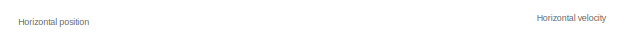
[diagram: root canvas - part 1/6, top left region]
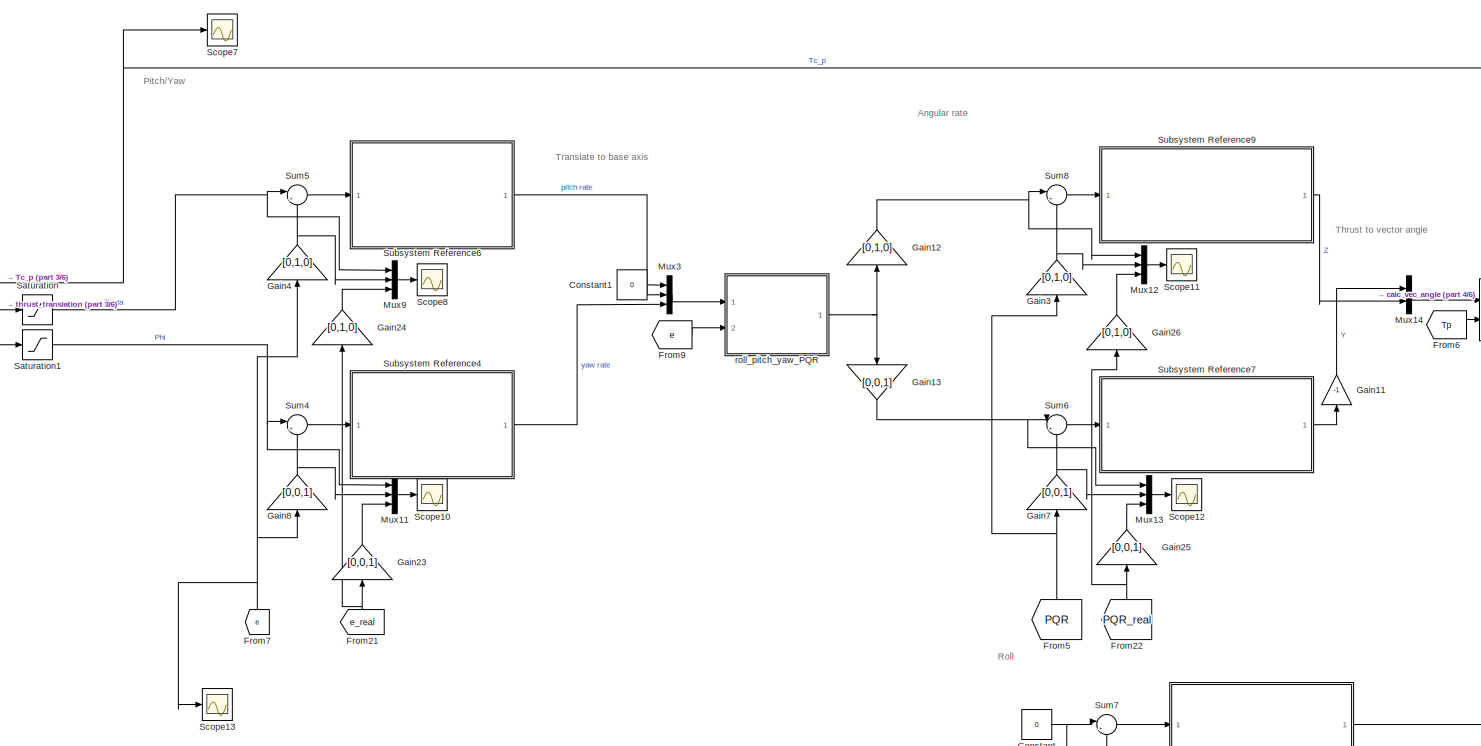
[diagram: root canvas - part 2/6, top center region]
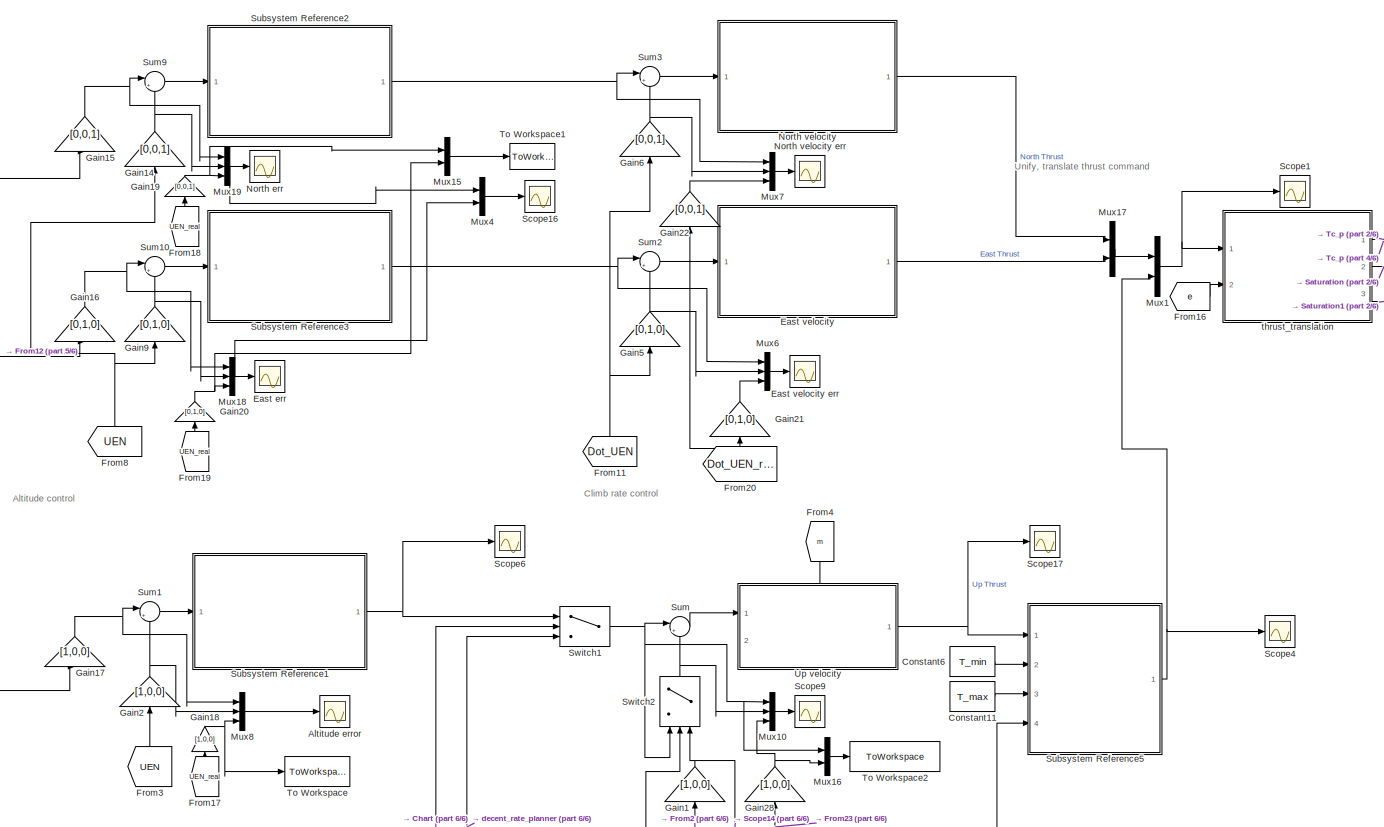
[diagram: root canvas - part 3/6, top left region]
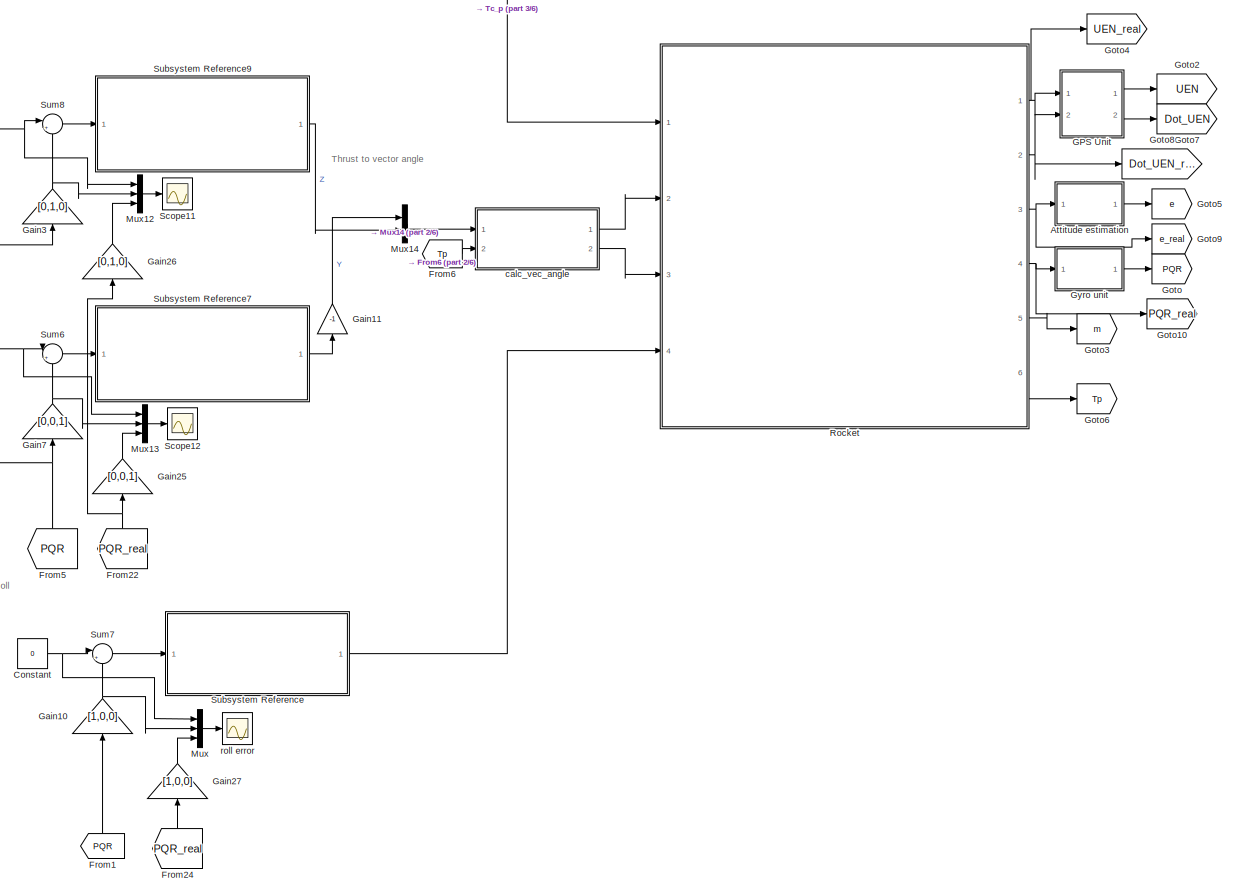
[diagram: root canvas - part 4/6, middle right region]
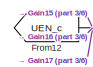
[diagram: root canvas - part 5/6, top left region]
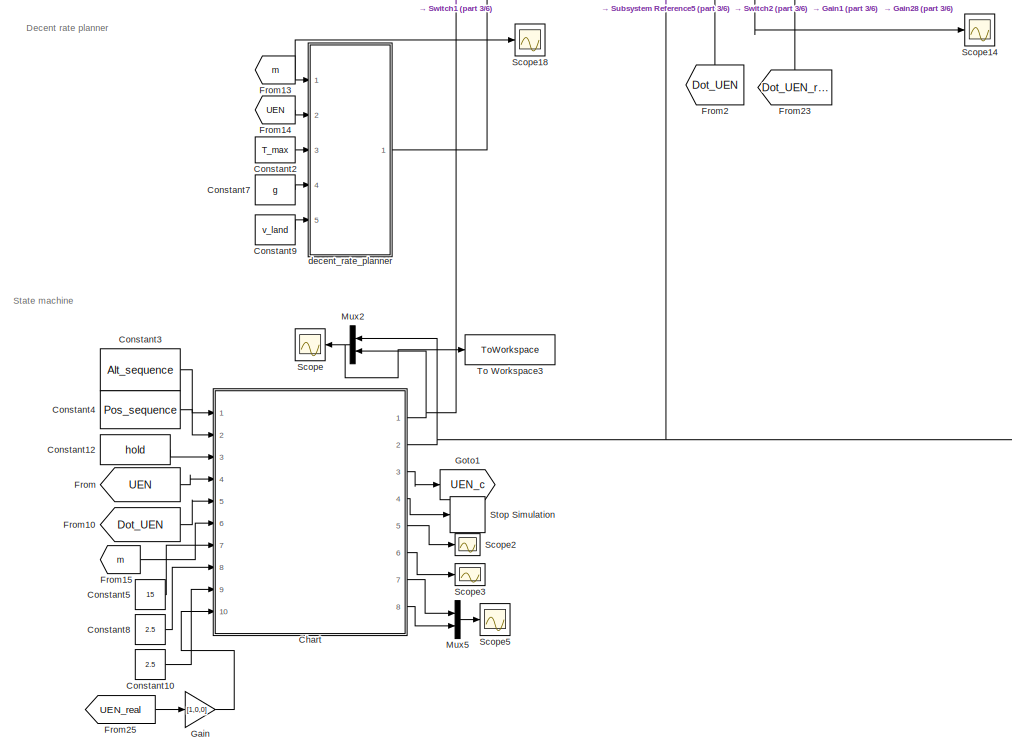
[diagram: root canvas - part 6/6, bottom left region]
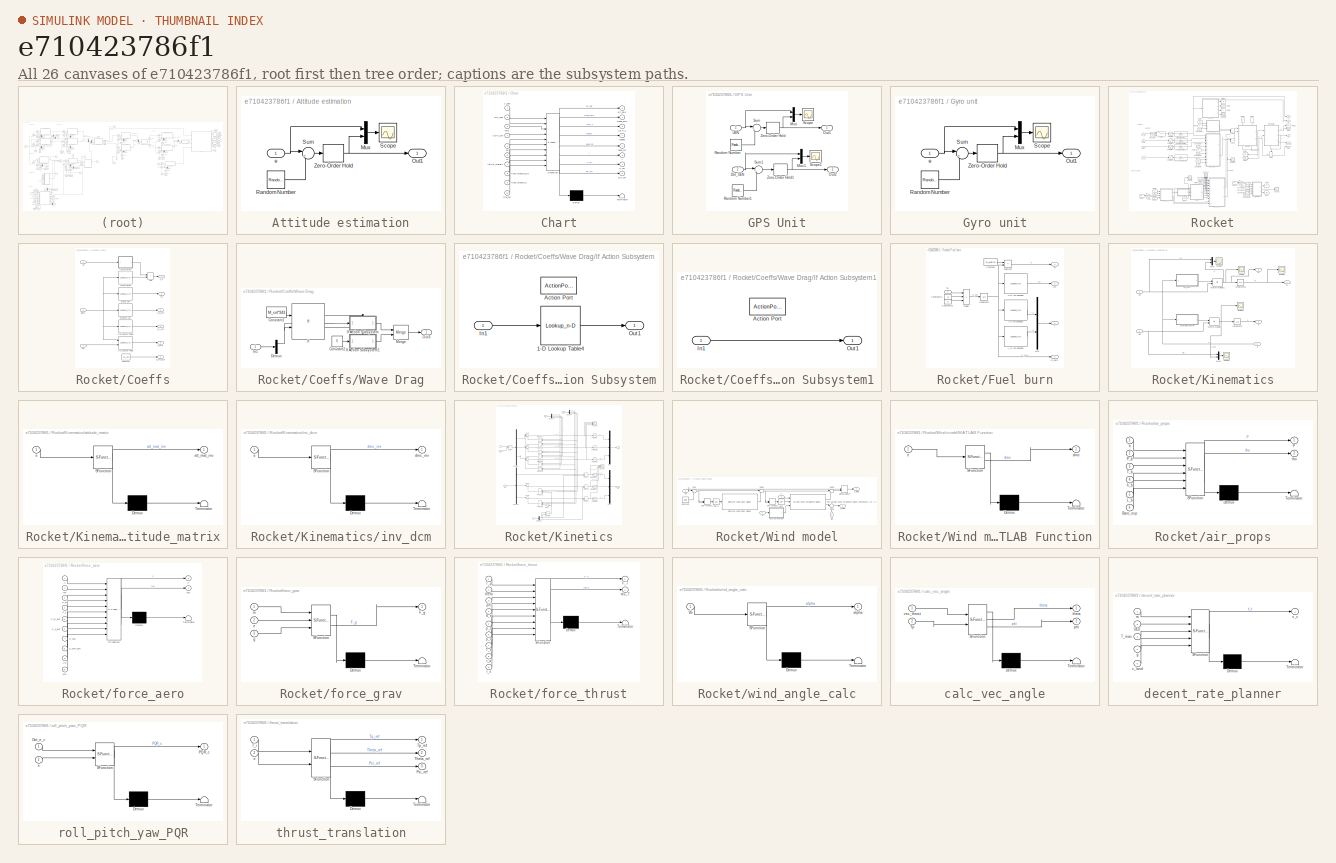
[diagram: thumbnail index - all 26 canvases of the model, root first then tree order]
MODEL slx_e710423786f1
KIND model
CONFIG AbsTol = auto
CONFIG EnableMultiTasking = off
CONFIG FixedStep = auto
CONFIG MaxStep = auto
CONFIG MinStep = auto
CONFIG RelTol = 1e-3
CONFIG SampleTimeConstraint = Unconstrained
CONFIG SolverName = VariableStepAuto
CONFIG StartTime = 0.0
CONFIG StopTime = 100
BLOCK [Scope] Altitude error
  Floating = off
  NumInputPorts = 1
  Ports = [1]
  ScopeSpecificationString = Simulink.scopes.TimeScopeBlockCfg('CurrentConfiguration', extmgr.ConfigurationSet(extmgr.Configuration('Core','General UI',true),extmgr.Configuration('Core','Source UI',true),extmgr.Configuration('Sources','WiredSimulink',true,'DataLoggingVariableName','ScopeData14'),extmgr.Configuration('Visuals','Time Domain',true,'SerializedDisplays',{struct('MinYLimReal','-0.03242','MaxYLimReal','0.27004','YLa...<+1550ch>
BLOCK [SubSystem] Attitude estimation
  Ports = [1, 1]
  RequestExecContextInheritance = off
BLOCK [Mux] Attitude estimation/Mux
  DisplayOption = bar
  Inputs = 2
  Ports = [2, 1]
BLOCK [Outport] Attitude estimation/Out1
BLOCK [RandomNumber] Attitude estimation/Random Number
  SampleTime = 0.001
  Variance = (ang_error/3)^2
BLOCK [Scope] Attitude estimation/Scope
  Floating = off
  NumInputPorts = 1
  Ports = [1]
  ScopeSpecificationString = Simulink.scopes.TimeScopeBlockCfg('CurrentConfiguration', extmgr.ConfigurationSet(extmgr.Configuration('Core','General UI',true),extmgr.Configuration('Core','Source UI',true),extmgr.Configuration('Sources','WiredSimulink',true,'DataLoggingVariableName','ScopeData6'),extmgr.Configuration('Visuals','Time Domain',true,'SerializedDisplays',{struct('MinYLimReal','-0.87459','MaxYLimReal','0.92504','YLab...<+1718ch>
BLOCK [Sum] Attitude estimation/Sum
  Inputs = |++
  Ports = [2, 1]
BLOCK [ZeroOrderHold] Attitude estimation/Zero-Order Hold
  SampleTime = 1/500
BLOCK [Inport] Attitude estimation/e
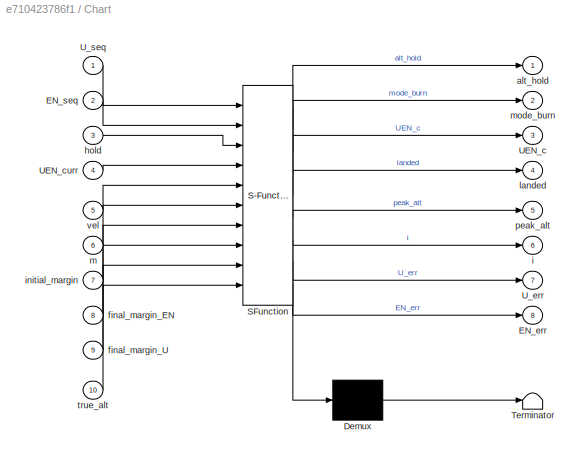
BLOCK [SubSystem] Chart
  ErrorFcn = Stateflow.Translate.translate
  PermitHierarchicalResolution = ExplicitOnly
  Ports = [10, 8]
  RequestExecContextInheritance = off
  SFBlockType = Chart
  TreatAsAtomicUnit = on
BLOCK [Demux] Chart/ Demux 
  Outputs = 1
  Ports = [1, 1]
BLOCK [S-Function] Chart/ SFunction 
  EnableBusSupport = on
  FunctionName = sf_sfun
  PortCounts = [10 9]
  Ports = [10, 9]
  SFcnIsStateOwnerBlock = off
  SFunctionDeploymentMode = off
  Tag = Stateflow S-Function 10
BLOCK [Terminator] Chart/ Terminator 
BLOCK [Outport] Chart/EN_err
  Port = 8
BLOCK [Inport] Chart/EN_seq
  Port = 2
BLOCK [Outport] Chart/UEN_c
  Port = 3
BLOCK [Inport] Chart/UEN_curr
  Port = 4
BLOCK [Outport] Chart/U_err
  Port = 7
BLOCK [Inport] Chart/U_seq
BLOCK [Outport] Chart/alt_hold
BLOCK [Inport] Chart/final_margin_EN
  Port = 8
BLOCK [Inport] Chart/final_margin_U
  Port = 9
BLOCK [Inport] Chart/hold
  Port = 3
BLOCK [Outport] Chart/i
  Port = 6
BLOCK [Inport] Chart/initial_margin
  Port = 7
BLOCK [Outport] Chart/landed
  Port = 4
BLOCK [Inport] Chart/m
  Port = 6
BLOCK [Outport] Chart/mode_burn
  Port = 2
BLOCK [Outport] Chart/peak_alt
  Port = 5
BLOCK [Inport] Chart/true_alt
  Port = 10
BLOCK [Inport] Chart/vel
  Port = 5
BLOCK [Constant] Constant
  Value = 0
BLOCK [Constant] Constant1
  Value = 0
BLOCK [Constant] Constant10
  Value = 2.5
BLOCK [Constant] Constant11
  Value = T_max
BLOCK [Constant] Constant12
  Value = hold
BLOCK [Constant] Constant2
  Value = T_max
BLOCK [Constant] Constant3
  Value = Alt_sequence
BLOCK [Constant] Constant4
  Value = Pos_sequence
BLOCK [Constant] Constant5
  Value = 15
BLOCK [Constant] Constant6
  Value = T_min
BLOCK [Constant] Constant7
  Value = g
BLOCK [Constant] Constant8
  Value = 2.5
BLOCK [Constant] Constant9
  Value = v_land
BLOCK [Scope] East err
  Floating = off
  NumInputPorts = 1
  Ports = [1]
  ScopeSpecificationString = Simulink.scopes.TimeScopeBlockCfg('CurrentConfiguration', extmgr.ConfigurationSet(extmgr.Configuration('Core','General UI',true),extmgr.Configuration('Core','Source UI',true),extmgr.Configuration('Sources','WiredSimulink',true,'DataLoggingVariableName','ScopeData3'),extmgr.Configuration('Visuals','Time Domain',true,'SerializedDisplays',{struct('MinYLimReal','-40.99916','MaxYLimReal','38.5905','YLa...<+1459ch>
BLOCK [SubSystem] East velocity
  Ports = [1, 1]
  ReferencedSubsystem = hor_vel_control
  RequestExecContextInheritance = off
BLOCK [Scope] East velocity err
  Floating = off
  NumInputPorts = 1
  Ports = [1]
  ScopeSpecificationString = Simulink.scopes.TimeScopeBlockCfg('CurrentConfiguration', extmgr.ConfigurationSet(extmgr.Configuration('Core','General UI',true),extmgr.Configuration('Core','Source UI',true),extmgr.Configuration('Sources','WiredSimulink',true,'DataLoggingVariableName','ScopeData9'),extmgr.Configuration('Visuals','Time Domain',true,'SerializedDisplays',{struct('MinYLimReal','-1.44687','MaxYLimReal','1.40033','YLab...<+1538ch>
BLOCK [From] From
  GotoTag = UEN
BLOCK [From] From1
  GotoTag = PQR
  NameLocation = right
BLOCK [From] From10
  GotoTag = Dot_UEN
BLOCK [From] From11
  GotoTag = Dot_UEN
  NameLocation = right
BLOCK [From] From12
  GotoTag = UEN_c
BLOCK [From] From13
  GotoTag = m
BLOCK [From] From14
  GotoTag = UEN
BLOCK [From] From15
  GotoTag = m
BLOCK [From] From16
  GotoTag = e
BLOCK [From] From17
  GotoTag = UEN_real
  NameLocation = right
BLOCK [From] From18
  GotoTag = UEN_real
  NameLocation = right
BLOCK [From] From19
  GotoTag = UEN_real
  NameLocation = right
BLOCK [From] From2
  GotoTag = Dot_UEN
  NameLocation = right
BLOCK [From] From20
  GotoTag = Dot_UEN_real
  NameLocation = right
BLOCK [From] From21
  GotoTag = e_real
  NameLocation = right
BLOCK [From] From22
  GotoTag = PQR_real
  NameLocation = right
BLOCK [From] From23
  GotoTag = Dot_UEN_real
  NameLocation = right
BLOCK [From] From24
  GotoTag = PQR_real
  NameLocation = right
BLOCK [From] From25
  GotoTag = UEN_real
BLOCK [From] From3
  GotoTag = UEN
  NameLocation = right
BLOCK [From] From4
  GotoTag = m
  NameLocation = left
BLOCK [From] From5
  GotoTag = PQR
  NameLocation = right
BLOCK [From] From6
  GotoTag = Tp
BLOCK [From] From7
  GotoTag = e
  NameLocation = right
BLOCK [From] From8
  GotoTag = UEN
  NameLocation = right
BLOCK [From] From9
  GotoTag = e
BLOCK [SubSystem] GPS Unit
  Ports = [2, 2]
  RequestExecContextInheritance = off
BLOCK [Inport] GPS Unit/Dot_UEN
  Port = 2
BLOCK [Mux] GPS Unit/Mux
  DisplayOption = bar
  Inputs = 2
  Ports = [2, 1]
BLOCK [Mux] GPS Unit/Mux1
  DisplayOption = bar
  Inputs = 2
  Ports = [2, 1]
BLOCK [Outport] GPS Unit/Out1
BLOCK [Outport] GPS Unit/Out2
  Port = 2
BLOCK [RandomNumber] GPS Unit/Random Number
  SampleTime = 1/100
  Variance = (pos_error/3)^2
BLOCK [RandomNumber] GPS Unit/Random Number1
  SampleTime = 1/100
  Variance = (vel_error/3)^2
BLOCK [Scope] GPS Unit/Scope
  Floating = off
  NumInputPorts = 1
  Ports = [1]
  ScopeSpecificationString = Simulink.scopes.TimeScopeBlockCfg('CurrentConfiguration', extmgr.ConfigurationSet(extmgr.Configuration('Core','General UI',true),extmgr.Configuration('Core','Source UI',true),extmgr.Configuration('Sources','WiredSimulink',true,'DataLoggingVariableName','ScopeData6'),extmgr.Configuration('Visuals','Time Domain',true,'SerializedDisplays',{struct('MinYLimReal','27.51355','MaxYLimReal','33.99188','YLa...<+1730ch>
BLOCK [Scope] GPS Unit/Scope1
  Floating = off
  NumInputPorts = 1
  Ports = [1]
  ScopeSpecificationString = Simulink.scopes.TimeScopeBlockCfg('CurrentConfiguration', extmgr.ConfigurationSet(extmgr.Configuration('Core','General UI',true),extmgr.Configuration('Core','Source UI',true),extmgr.Configuration('Sources','WiredSimulink',true,'DataLoggingVariableName','ScopeData7'),extmgr.Configuration('Visuals','Time Domain',true,'SerializedDisplays',{struct('MinYLimReal','-19.50054','MaxYLimReal','13.89662','YL...<+1536ch>
BLOCK [Sum] GPS Unit/Sum
  Inputs = |++
  Ports = [2, 1]
BLOCK [Sum] GPS Unit/Sum1
  Inputs = |++
  Ports = [2, 1]
BLOCK [Inport] GPS Unit/UEN
BLOCK [ZeroOrderHold] GPS Unit/Zero-Order Hold
  SampleTime = 1/18
BLOCK [ZeroOrderHold] GPS Unit/Zero-Order Hold1
  SampleTime = 1/18
BLOCK [Gain] Gain
  Gain = [1,0,0]
  Multiplication = Matrix(K*u)
BLOCK [Gain] Gain1
  Gain = [1,0,0]
  Multiplication = Matrix(K*u)
  NameLocation = right
BLOCK [Gain] Gain10
  Gain = [1,0,0]
  Multiplication = Matrix(K*u)
  NameLocation = right
BLOCK [Gain] Gain11
  Gain = -1
  NameLocation = right
BLOCK [Gain] Gain12
  Gain = [0,1,0]
  Multiplication = Matrix(K*u)
  NameLocation = right
BLOCK [Gain] Gain13
  Gain = [0,0,1]
  Multiplication = Matrix(K*u)
  NameLocation = left
BLOCK [Gain] Gain14
  Gain = [0,0,1]
  Multiplication = Matrix(K*u)
  NameLocation = right
BLOCK [Gain] Gain15
  Gain = [0,0,1]
  Multiplication = Matrix(K*u)
  NameLocation = right
BLOCK [Gain] Gain16
  Gain = [0,1,0]
  Multiplication = Matrix(K*u)
  NameLocation = right
BLOCK [Gain] Gain17
  Gain = [1,0,0]
  Multiplication = Matrix(K*u)
  NameLocation = right
BLOCK [Gain] Gain18
  Gain = [1,0,0]
  Multiplication = Matrix(K*u)
  NameLocation = right
BLOCK [Gain] Gain19
  Gain = [0,0,1]
  Multiplication = Matrix(K*u)
  NameLocation = right
BLOCK [Gain] Gain2
  Gain = [1,0,0]
  Multiplication = Matrix(K*u)
  NameLocation = right
BLOCK [Gain] Gain20
  Gain = [0,1,0]
  Multiplication = Matrix(K*u)
  NameLocation = right
BLOCK [Gain] Gain21
  Gain = [0,1,0]
  Multiplication = Matrix(K*u)
  NameLocation = right
BLOCK [Gain] Gain22
  Gain = [0,0,1]
  Multiplication = Matrix(K*u)
  NameLocation = right
BLOCK [Gain] Gain23
  Gain = [0,0,1]
  Multiplication = Matrix(K*u)
  NameLocation = right
BLOCK [Gain] Gain24
  Gain = [0,1,0]
  Multiplication = Matrix(K*u)
  NameLocation = right
BLOCK [Gain] Gain25
  Gain = [0,0,1]
  Multiplication = Matrix(K*u)
  NameLocation = right
BLOCK [Gain] Gain26
  Gain = [0,1,0]
  Multiplication = Matrix(K*u)
  NameLocation = right
BLOCK [Gain] Gain27
  Gain = [1,0,0]
  Multiplication = Matrix(K*u)
  NameLocation = right
BLOCK [Gain] Gain28
  Gain = [1,0,0]
  Multiplication = Matrix(K*u)
  NameLocation = right
BLOCK [Gain] Gain3
  Gain = [0,1,0]
  Multiplication = Matrix(K*u)
  NameLocation = right
BLOCK [Gain] Gain4
  Gain = [0,1,0]
  Multiplication = Matrix(K*u)
  NameLocation = right
BLOCK [Gain] Gain5
  Gain = [0,1,0]
  Multiplication = Matrix(K*u)
  NameLocation = right
BLOCK [Gain] Gain6
  Gain = [0,0,1]
  Multiplication = Matrix(K*u)
  NameLocation = right
BLOCK [Gain] Gain7
  Gain = [0,0,1]
  Multiplication = Matrix(K*u)
  NameLocation = right
BLOCK [Gain] Gain8
  Gain = [0,0,1]
  Multiplication = Matrix(K*u)
  NameLocation = right
BLOCK [Gain] Gain9
  Gain = [0,1,0]
  Multiplication = Matrix(K*u)
  NameLocation = right
BLOCK [Goto] Goto
  GotoTag = PQR
BLOCK [Goto] Goto1
  GotoTag = UEN_c
BLOCK [Goto] Goto10
  GotoTag = PQR_real
BLOCK [Goto] Goto2
  GotoTag = UEN
BLOCK [Goto] Goto3
  GotoTag = m
BLOCK [Goto] Goto4
  GotoTag = UEN_real
BLOCK [Goto] Goto5
  GotoTag = e
BLOCK [Goto] Goto6
  GotoTag = Tp
BLOCK [Goto] Goto7
  GotoTag = Dot_UEN
BLOCK [Goto] Goto8
  GotoTag = Dot_UEN_real
BLOCK [Goto] Goto9
  GotoTag = e_real
BLOCK [SubSystem] Gyro unit
  Ports = [1, 1]
  RequestExecContextInheritance = off
BLOCK [Mux] Gyro unit/Mux
  DisplayOption = bar
  Inputs = 2
  Ports = [2, 1]
BLOCK [Outport] Gyro unit/Out1
BLOCK [RandomNumber] Gyro unit/Random Number
  SampleTime = 0.001
  Variance = (rate_error/3)^2
BLOCK [Scope] Gyro unit/Scope
  Floating = off
  NumInputPorts = 1
  Ports = [1]
  ScopeSpecificationString = Simulink.scopes.TimeScopeBlockCfg('CurrentConfiguration', extmgr.ConfigurationSet(extmgr.Configuration('Core','General UI',true),extmgr.Configuration('Core','Source UI',true),extmgr.Configuration('Sources','WiredSimulink',true,'DataLoggingVariableName','ScopeData6'),extmgr.Configuration('Visuals','Time Domain',true,'SerializedDisplays',{struct('MinYLimReal','-0.87459','MaxYLimReal','0.92504','YLab...<+1718ch>
BLOCK [Sum] Gyro unit/Sum
  Inputs = |++
  Ports = [2, 1]
BLOCK [ZeroOrderHold] Gyro unit/Zero-Order Hold
  SampleTime = 1/500
BLOCK [Inport] Gyro unit/e
BLOCK [Mux] Mux
  DisplayOption = bar
  Inputs = 3
  Ports = [3, 1]
BLOCK [Mux] Mux1
  DisplayOption = bar
  Inputs = 2
  Ports = [2, 1]
BLOCK [Mux] Mux10
  DisplayOption = bar
  Inputs = 3
  Ports = [3, 1]
BLOCK [Mux] Mux11
  DisplayOption = bar
  Inputs = 3
  Ports = [3, 1]
BLOCK [Mux] Mux12
  DisplayOption = bar
  Inputs = 3
  Ports = [3, 1]
BLOCK [Mux] Mux13
  DisplayOption = bar
  Inputs = 3
  Ports = [3, 1]
BLOCK [Mux] Mux14
  DisplayOption = bar
  Inputs = 2
  Ports = [2, 1]
BLOCK [Mux] Mux15
  DisplayOption = bar
  Inputs = 2
  Ports = [2, 1]
BLOCK [Mux] Mux16
  DisplayOption = bar
  Inputs = 2
  Ports = [2, 1]
BLOCK [Mux] Mux17
  DisplayOption = bar
  Inputs = 2
  Ports = [2, 1]
BLOCK [Mux] Mux18
  DisplayOption = bar
  Inputs = 3
  Ports = [3, 1]
BLOCK [Mux] Mux19
  DisplayOption = bar
  Inputs = 3
  Ports = [3, 1]
BLOCK [Mux] Mux2
  DisplayOption = bar
  Inputs = 2
  NameLocation = top
  Ports = [2, 1]
BLOCK [Mux] Mux3
  DisplayOption = bar
  Inputs = 3
  Ports = [3, 1]
BLOCK [Mux] Mux4
  DisplayOption = bar
  Inputs = 2
  Ports = [2, 1]
BLOCK [Mux] Mux5
  DisplayOption = bar
  Inputs = 2
  Ports = [2, 1]
BLOCK [Mux] Mux6
  DisplayOption = bar
  Inputs = 3
  Ports = [3, 1]
BLOCK [Mux] Mux7
  DisplayOption = bar
  Inputs = 3
  Ports = [3, 1]
BLOCK [Mux] Mux8
  DisplayOption = bar
  Inputs = 3
  Ports = [3, 1]
BLOCK [Mux] Mux9
  DisplayOption = bar
  Inputs = 3
  Ports = [3, 1]
BLOCK [Scope] North err
  Floating = off
  NumInputPorts = 1
  Ports = [1]
  ScopeSpecificationString = Simulink.scopes.TimeScopeBlockCfg('CurrentConfiguration', extmgr.ConfigurationSet(extmgr.Configuration('Core','General UI',true),extmgr.Configuration('Core','Source UI',true),extmgr.Configuration('Sources','WiredSimulink',true,'DataLoggingVariableName','ScopeData4'),extmgr.Configuration('Visuals','Time Domain',true,'SerializedDisplays',{struct('MinYLimReal','-39.82766','MaxYLimReal','38.24334','YL...<+1463ch>
BLOCK [SubSystem] North velocity
  Ports = [1, 1]
  ReferencedSubsystem = hor_vel_control
  RequestExecContextInheritance = off
BLOCK [Scope] North velocity err
  Floating = off
  NumInputPorts = 1
  Ports = [1]
  ScopeSpecificationString = Simulink.scopes.TimeScopeBlockCfg('CurrentConfiguration', extmgr.ConfigurationSet(extmgr.Configuration('Core','General UI',true),extmgr.Configuration('Core','Source UI',true),extmgr.Configuration('Sources','WiredSimulink',true,'DataLoggingVariableName','ScopeData10'),extmgr.Configuration('Visuals','Time Domain',true,'SerializedDisplays',{struct('MinYLimReal','-1.45922','MaxYLimReal','1.40056','YLa...<+1539ch>
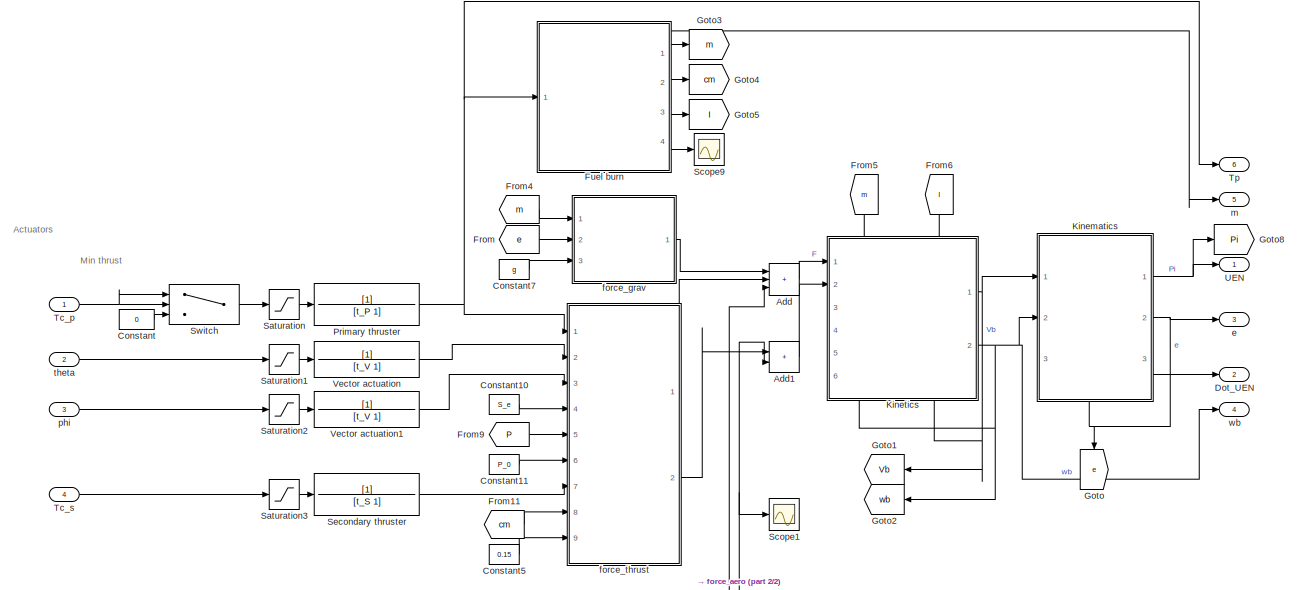
[diagram: Rocket - part 1/2, full width, middle band]
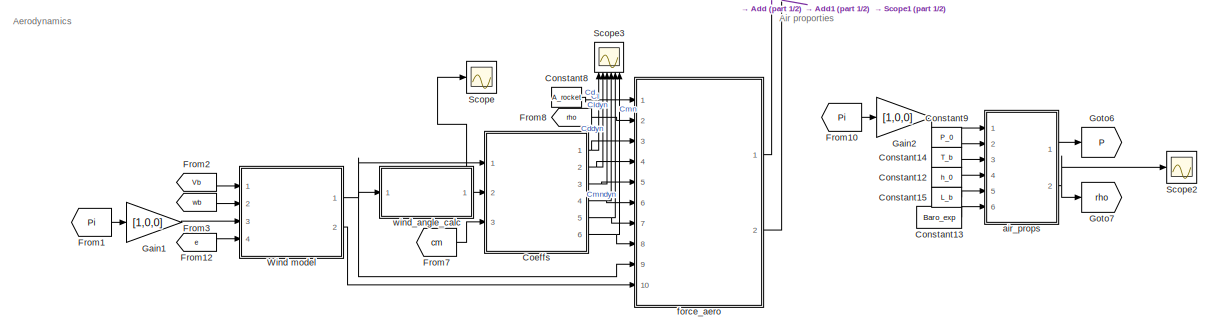
[diagram: Rocket - part 2/2, full width, bottom band]
BLOCK [SubSystem] Rocket
  Ports = [4, 6]
  RequestExecContextInheritance = off
BLOCK [Sum] Rocket/Add
  IconShape = rectangular
  Inputs = +++
  Ports = [3, 1]
BLOCK [Sum] Rocket/Add1
  IconShape = rectangular
  Ports = [2, 1]
BLOCK [SubSystem] Rocket/Coeffs
  Ports = [3, 6]
  RequestExecContextInheritance = off
BLOCK [Lookup_n-D] Rocket/Coeffs/1-D Lookup Table2
  BreakpointsForDimension1 = alpha_fine
  InputPortMap = u0
  InternalRulePriority = Speed
  NumberOfTableDimensions = 1
  Ports = [1, 1]
  RndMeth = Simplest
  Table = lift_rot_lookup
BLOCK [Lookup_n-D] Rocket/Coeffs/2-D Lookup Table
  BreakpointsForDimension1 = alpha_fine
  BreakpointsForDimension2 = cm_fine
  InputPortMap = u0,u1
  InternalRulePriority = Speed
  Ports = [2, 1]
  RndMeth = Simplest
  Table = T_lookup
BLOCK [Sum] Rocket/Coeffs/Add
  IconShape = rectangular
  Ports = [2, 1]
BLOCK [Outport] Rocket/Coeffs/C_D
BLOCK [Outport] Rocket/Coeffs/C_D_dyn
  Port = 3
BLOCK [Outport] Rocket/Coeffs/C_L
  Port = 2
BLOCK [Outport] Rocket/Coeffs/C_L_dyn
  Port = 4
BLOCK [Outport] Rocket/Coeffs/C_MN
  Port = 5
BLOCK [Outport] Rocket/Coeffs/C_MN_dyn
  Port = 6
BLOCK [Constant] Rocket/Coeffs/Constant
  Value = Ct_rot
BLOCK [Lookup_n-D] Rocket/Coeffs/Dynamic Lift
  BreakpointsForDimension1 = alpha_fine
  InputPortMap = u0
  InternalRulePriority = Speed
  NumberOfTableDimensions = 1
  Ports = [1, 1]
  RndMeth = Simplest
  Table = drag_rot_lookup
BLOCK [Lookup_n-D] Rocket/Coeffs/Static Drag
  BreakpointsForDimension1 = alpha_fine
  InputPortMap = u0
  InternalRulePriority = Speed
  NumberOfTableDimensions = 1
  Ports = [1, 1]
  RndMeth = Simplest
  Table = drag_lookup
BLOCK [Lookup_n-D] Rocket/Coeffs/Static Lift
  BreakpointsForDimension1 = alpha_fine
  InputPortMap = u0
  InternalRulePriority = Speed
  NumberOfTableDimensions = 1
  Ports = [1, 1]
  RndMeth = Simplest
  Table = lift_lookup
BLOCK [Inport] Rocket/Coeffs/Vb
BLOCK [SubSystem] Rocket/Coeffs/Wave Drag
  Ports = [1, 1]
  RequestExecContextInheritance = off
BLOCK [Constant] Rocket/Coeffs/Wave Drag/Constant1
  Value = M_crit*343
BLOCK [Constant] Rocket/Coeffs/Wave Drag/Constant2
  Value = 0
BLOCK [Demux] Rocket/Coeffs/Wave Drag/Demux
  Outputs = 3
  Ports = [1, 3]
BLOCK [If] Rocket/Coeffs/Wave Drag/If
  IfExpression = u1 < u2
  NumInputs = 2
  Ports = [2, 2]
BLOCK [SubSystem] Rocket/Coeffs/Wave Drag/If Action Subsystem
  Ports = [1, 1, 0, 0, 0, 0, 0, 1]
  RequestExecContextInheritance = off
  TreatAsAtomicUnit = on
BLOCK [Lookup_n-D] Rocket/Coeffs/Wave Drag/If Action Subsystem/1-D Lookup Table4
  BreakpointsForDimension1 = M_fine*343
  InputPortMap = u0
  InternalRulePriority = Speed
  NumberOfTableDimensions = 1
  Ports = [1, 1]
  RndMeth = Simplest
  Table = drag_wave_lookup
BLOCK [ActionPort] Rocket/Coeffs/Wave Drag/If Action Subsystem/Action Port
  ActionPortLabel = if(u1 < u2)
BLOCK [Inport] Rocket/Coeffs/Wave Drag/If Action Subsystem/In1
BLOCK [Outport] Rocket/Coeffs/Wave Drag/If Action Subsystem/Out1
BLOCK [SubSystem] Rocket/Coeffs/Wave Drag/If Action Subsystem1
  Ports = [1, 1, 0, 0, 0, 0, 0, 1]
  RequestExecContextInheritance = off
  TreatAsAtomicUnit = on
BLOCK [ActionPort] Rocket/Coeffs/Wave Drag/If Action Subsystem1/Action Port
  ActionPortLabel = else
BLOCK [Inport] Rocket/Coeffs/Wave Drag/If Action Subsystem1/In1
BLOCK [Outport] Rocket/Coeffs/Wave Drag/If Action Subsystem1/Out1
BLOCK [Inport] Rocket/Coeffs/Wave Drag/In1
BLOCK [Merge] Rocket/Coeffs/Wave Drag/Merge
  Ports = [2, 1]
BLOCK [Outport] Rocket/Coeffs/Wave Drag/Out3
BLOCK [Inport] Rocket/Coeffs/alpha
  Port = 2
BLOCK [Inport] Rocket/Coeffs/cm
  Port = 3
BLOCK [Constant] Rocket/Constant
  Value = 0
BLOCK [Constant] Rocket/Constant10
  Value = S_e
BLOCK [Constant] Rocket/Constant11
  Value = P_0
BLOCK [Constant] Rocket/Constant12
  Value = h_0
BLOCK [Constant] Rocket/Constant13
  Value = Baro_exp
BLOCK [Constant] Rocket/Constant14
  Value = T_b
BLOCK [Constant] Rocket/Constant15
  Value = L_b
BLOCK [Constant] Rocket/Constant5
  Value = 0.15
BLOCK [Constant] Rocket/Constant7
  Value = g
BLOCK [Constant] Rocket/Constant8
  Value = A_rocket
BLOCK [Constant] Rocket/Constant9
  Value = P_0
BLOCK [Outport] Rocket/Dot_UEN
  Port = 2
BLOCK [From] Rocket/From
  GotoTag = e
BLOCK [From] Rocket/From1
  GotoTag = Pi
BLOCK [From] Rocket/From10
  GotoTag = Pi
BLOCK [From] Rocket/From11
  GotoTag = cm
BLOCK [From] Rocket/From12
  GotoTag = e
BLOCK [From] Rocket/From2
  GotoTag = Vb
BLOCK [From] Rocket/From3
  GotoTag = wb
BLOCK [From] Rocket/From4
  GotoTag = m
BLOCK [From] Rocket/From5
  GotoTag = m
  NameLocation = left
BLOCK [From] Rocket/From6
  GotoTag = I
  NameLocation = left
BLOCK [From] Rocket/From7
  GotoTag = cm
BLOCK [From] Rocket/From8
  GotoTag = rho
BLOCK [From] Rocket/From9
  GotoTag = P
BLOCK [SubSystem] Rocket/Fuel burn
  Ports = [1, 4]
  RequestExecContextInheritance = off
BLOCK [Lookup_n-D] Rocket/Fuel burn/CM (no payload)
  BreakpointsForDimension1 = [0,m_prop_max*2]
  InputPortMap = u0
  InternalRulePriority = Speed
  NumberOfTableDimensions = 1
  Ports = [1, 1]
  RndMeth = Simplest
  Table = cm_lookup
BLOCK [Constant] Rocket/Fuel burn/Constant
  Value = m_wet(1)
BLOCK [Constant] Rocket/Fuel burn/Constant11
  Value = I_s
BLOCK [Constant] Rocket/Fuel burn/Constant12
  Value = g
BLOCK [Product] Rocket/Fuel burn/Divide
  Inputs = *//
  Ports = [3, 1]
BLOCK [Outport] Rocket/Fuel burn/I
  Port = 3
BLOCK [Lookup_n-D] Rocket/Fuel burn/I_x (no payload)
  BreakpointsForDimension1 = [0,m_prop_max*2]
  InputPortMap = u0
  InternalRulePriority = Speed
  NumberOfTableDimensions = 1
  Ports = [1, 1]
  RndMeth = Simplest
  Table = I_x_lookup
BLOCK [Lookup_n-D] Rocket/Fuel burn/I_yz (no payload)
  BreakpointsForDimension1 = m_burn*2
  InputPortMap = u0
  InternalRulePriority = Speed
  NumberOfTableDimensions = 1
  Ports = [1, 1]
  RndMeth = Simplest
  Table = I_yz_lookup
BLOCK [Integrator] Rocket/Fuel burn/Integrator
  Ports = [1, 1]
BLOCK [Mux] Rocket/Fuel burn/Mux
  DisplayOption = bar
  Inputs = 2
  Ports = [2, 1]
BLOCK [Sum] Rocket/Fuel burn/Subtract
  IconShape = rectangular
  Inputs = +-
  Ports = [2, 1]
BLOCK [Inport] Rocket/Fuel burn/Tp
  NameLocation = top
BLOCK [Outport] Rocket/Fuel burn/cm
  Port = 2
BLOCK [Outport] Rocket/Fuel burn/m
BLOCK [Outport] Rocket/Fuel burn/m_burn
  Port = 4
BLOCK [Gain] Rocket/Gain1
  Gain = [1,0,0]
  Multiplication = Matrix(K*u)
BLOCK [Gain] Rocket/Gain2
  Gain = [1,0,0]
  Multiplication = Matrix(K*u)
BLOCK [Goto] Rocket/Goto
  GotoTag = e
  NameLocation = left
BLOCK [Goto] Rocket/Goto1
  GotoTag = Vb
  NameLocation = top
BLOCK [Goto] Rocket/Goto2
  GotoTag = wb
  NameLocation = top
BLOCK [Goto] Rocket/Goto3
  GotoTag = m
BLOCK [Goto] Rocket/Goto4
  GotoTag = cm
BLOCK [Goto] Rocket/Goto5
  GotoTag = I
BLOCK [Goto] Rocket/Goto6
  GotoTag = P
BLOCK [Goto] Rocket/Goto7
  GotoTag = rho
BLOCK [Goto] Rocket/Goto8
  GotoTag = Pi
BLOCK [SubSystem] Rocket/Kinematics
  NameLocation = top
  PortSchema = {"entries":[{"content":{"sides":[{"content":{"connectorIds":["In1","In2"]},"type":"ConnectorPlacement.EquallySpacedRectSide","uuid":"eae29983-0cae-4ee4-868d-1c50a6f3cfea"},{"content":{"connectorIds":["Out1","Out2","Out3"],"side":"RIGHT"},"type":"ConnectorPlacement.EquallySpacedRectSide","uuid":"bdc65933-6547-4251-8b39-00a552207d7f"},{"content":{"connectorIds":[],"side":"TOP"},"type":"ConnectorPlac...<+409ch>
  Ports = [3, 3]
  RequestExecContextInheritance = off
BLOCK [Inport] Rocket/Kinematics/3
  NameLocation = top
  Port = 3
BLOCK [Integrator] Rocket/Kinematics/Integrator
  InitialCondition = [Phi;Theta;Psi]
  Ports = [1, 1]
BLOCK [Integrator] Rocket/Kinematics/Integrator1
  InitialCondition = [Upsilon;E;N]
  LimitOutput = on
  LowerSaturationLimit = -[0;inf;inf]
  Ports = [1, 1]
BLOCK [Product] Rocket/Kinematics/Matrix Multiply
  Multiplication = Matrix(*)
  Ports = [2, 1]
BLOCK [Product] Rocket/Kinematics/Matrix Multiply1
  Multiplication = Matrix(*)
  Ports = [2, 1]
BLOCK [Mux] Rocket/Kinematics/Mux
  DisplayOption = bar
  Inputs = 2
  Ports = [2, 1]
BLOCK [Mux] Rocket/Kinematics/Mux1
  DisplayOption = bar
  Inputs = 2
  Ports = [2, 1]
BLOCK [Outport] Rocket/Kinematics/Pi
BLOCK [Scope] Rocket/Kinematics/Scope
  Floating = off
  NumInputPorts = 1
  Ports = [1]
  ScopeSpecificationString = Simulink.scopes.TimeScopeBlockCfg('CurrentConfiguration', extmgr.ConfigurationSet(extmgr.Configuration('Core','General UI',true),extmgr.Configuration('Core','Source UI',true),extmgr.Configuration('Sources','WiredSimulink',true,'DataLoggingVariableName','ScopeData2'),extmgr.Configuration('Visuals','Time Domain',true,'SerializedDisplays',{struct('MinYLimReal','-5.07435','MaxYLimReal','11.03797','YLa...<+1453ch>
BLOCK [Scope] Rocket/Kinematics/Scope1
  Floating = off
  NumInputPorts = 1
  Ports = [1]
  ScopeSpecificationString = Simulink.scopes.TimeScopeBlockCfg('CurrentConfiguration', extmgr.ConfigurationSet(extmgr.Configuration('Core','General UI',true),extmgr.Configuration('Core','Source UI',true),extmgr.Configuration('Sources','WiredSimulink',true,'DataLoggingVariableName','ScopeData1'),extmgr.Configuration('Visuals','Time Domain',true,'SerializedDisplays',{struct('MinYLimReal','-0.61611','MaxYLimReal','0.63269','YLab...<+1526ch>
BLOCK [Scope] Rocket/Kinematics/Scope2
  Floating = off
  NumInputPorts = 1
  Ports = [1]
  ScopeSpecificationString = Simulink.scopes.TimeScopeBlockCfg('CurrentConfiguration', extmgr.ConfigurationSet(extmgr.Configuration('Core','General UI',true),extmgr.Configuration('Core','Source UI',true),extmgr.Configuration('Sources','WiredSimulink',true,'DataLoggingVariableName','ScopeData7'),extmgr.Configuration('Visuals','Time Domain',true,'SerializedDisplays',{struct('MinYLimReal','-0.19364','MaxYLimReal','0.11938','YLab...<+1484ch>
BLOCK [Scope] Rocket/Kinematics/Scope3
  Floating = off
  NumInputPorts = 1
  Ports = [1]
  ScopeSpecificationString = Simulink.scopes.TimeScopeBlockCfg('CurrentConfiguration', extmgr.ConfigurationSet(extmgr.Configuration('Core','General UI',true),extmgr.Configuration('Core','Source UI',true),extmgr.Configuration('Sources','WiredSimulink',true,'DataLoggingVariableName','ScopeData6'),extmgr.Configuration('Visuals','Time Domain',true,'SerializedDisplays',{struct('MinYLimReal','-2.36118','MaxYLimReal','11.03824','YLa...<+1614ch>
BLOCK [Scope] Rocket/Kinematics/Scope4
  Floating = off
  NumInputPorts = 1
  Ports = [1]
  ScopeSpecificationString = Simulink.scopes.TimeScopeBlockCfg('CurrentConfiguration', extmgr.ConfigurationSet(extmgr.Configuration('Core','General UI',true),extmgr.Configuration('Core','Source UI',true),extmgr.Configuration('Sources','WiredSimulink',true,'DataLoggingVariableName','ScopeData7'),extmgr.Configuration('Visuals','Time Domain',true,'SerializedDisplays',{struct('MinYLimReal','-0.48461','MaxYLimReal','0.81667','YLab...<+1592ch>
BLOCK [Inport] Rocket/Kinematics/Vb
BLOCK [Outport] Rocket/Kinematics/Vi
  Port = 3
BLOCK [SubSystem] Rocket/Kinematics/attitude_matrix
  ErrorFcn = Stateflow.Translate.translate
  PermitHierarchicalResolution = ExplicitOnly
  Ports = [1, 1]
  RequestExecContextInheritance = off
  SFBlockType = MATLAB Function
  TreatAsAtomicUnit = on
BLOCK [Demux] Rocket/Kinematics/attitude_matrix/ Demux 
  Outputs = 1
  Ports = [1, 1]
BLOCK [S-Function] Rocket/Kinematics/attitude_matrix/ SFunction 
  EnableBusSupport = on
  FunctionName = sf_sfun
  PortCounts = [1 2]
  Ports = [1, 2]
  SFcnIsStateOwnerBlock = off
  SFunctionDeploymentMode = off
  Tag = Stateflow S-Function 3
BLOCK [Terminator] Rocket/Kinematics/attitude_matrix/ Terminator 
BLOCK [Outport] Rocket/Kinematics/attitude_matrix/att_mat_inv
BLOCK [Inport] Rocket/Kinematics/attitude_matrix/e
BLOCK [Outport] Rocket/Kinematics/e
  Port = 2
BLOCK [SubSystem] Rocket/Kinematics/inv_dcm
  ErrorFcn = Stateflow.Translate.translate
  PermitHierarchicalResolution = ExplicitOnly
  Ports = [1, 1]
  RequestExecContextInheritance = off
  SFBlockType = MATLAB Function
  TreatAsAtomicUnit = on
BLOCK [Demux] Rocket/Kinematics/inv_dcm/ Demux 
  Outputs = 1
  Ports = [1, 1]
BLOCK [S-Function] Rocket/Kinematics/inv_dcm/ SFunction 
  EnableBusSupport = on
  FunctionName = sf_sfun
  PortCounts = [1 2]
  Ports = [1, 2]
  SFcnIsStateOwnerBlock = off
  SFunctionDeploymentMode = off
  Tag = Stateflow S-Function 4
BLOCK [Terminator] Rocket/Kinematics/inv_dcm/ Terminator 
BLOCK [Outport] Rocket/Kinematics/inv_dcm/dmc_inv
BLOCK [Inport] Rocket/Kinematics/inv_dcm/e
BLOCK [Inport] Rocket/Kinematics/wb
  Port = 2
BLOCK [SubSystem] Rocket/Kinetics
  NameLocation = top
  PortSchema = {"entries":[{"content":{"sides":[{"content":{"connectorIds":["In1","In2"]},"type":"ConnectorPlacement.EquallySpacedRectSide","uuid":"44e96cf1-b775-4685-9d80-77fe5197a3b8"},{"content":{"connectorIds":["Out1","Out2"],"side":"RIGHT"},"type":"ConnectorPlacement.EquallySpacedRectSide","uuid":"1ce02f86-3039-4a72-8110-79d6c21885aa"},{"content":{"connectorIds":["In3","In4"],"side":"TOP"},"type":"Connector...<+419ch>
  Ports = [6, 2]
  RequestExecContextInheritance = off
BLOCK [Inport] Rocket/Kinetics/5
  Port = 5
BLOCK [Inport] Rocket/Kinetics/6
  Port = 6
BLOCK [Demux] Rocket/Kinetics/Demux
  Outputs = 3
  Ports = [1, 3]
BLOCK [Demux] Rocket/Kinetics/Demux1
  Outputs = 3
  Ports = [1, 3]
BLOCK [Demux] Rocket/Kinetics/Demux2
  Outputs = 2
  Ports = [1, 2]
BLOCK [Demux] Rocket/Kinetics/Demux3
  Outputs = 3
  Ports = [1, 3]
BLOCK [Demux] Rocket/Kinetics/Demux4
  Outputs = 3
  Ports = [1, 3]
BLOCK [Product] Rocket/Kinetics/Divide
  Inputs = */
  Ports = [2, 1]
BLOCK [Product] Rocket/Kinetics/Divide1
  Inputs = */
  Ports = [2, 1]
BLOCK [Product] Rocket/Kinetics/Divide2
  Inputs = */
  Ports = [2, 1]
BLOCK [Product] Rocket/Kinetics/Divide3
  Inputs = */
  Ports = [2, 1]
BLOCK [Inport] Rocket/Kinetics/F
  PortDimensions = [3,1]
BLOCK [Gain] Rocket/Kinetics/Gain
  Gain = -1
  NameLocation = top
BLOCK [Inport] Rocket/Kinetics/I
  Port = 4
BLOCK [Integrator] Rocket/Kinetics/Integrator
  InitialCondition = U
  Ports = [1, 1]
BLOCK [Integrator] Rocket/Kinetics/Integrator1
  InitialCondition = V
  Ports = [1, 1]
BLOCK [Integrator] Rocket/Kinetics/Integrator2
  InitialCondition = W
  Ports = [1, 1]
BLOCK [Integrator] Rocket/Kinetics/Integrator3
  InitialCondition = P
  Ports = [1, 1]
BLOCK [Integrator] Rocket/Kinetics/Integrator4
  InitialCondition = Q
  Ports = [1, 1]
BLOCK [Integrator] Rocket/Kinetics/Integrator5
  InitialCondition = R
  Ports = [1, 1]
BLOCK [Mux] Rocket/Kinetics/Mux
  DisplayOption = bar
  Inputs = 3
  Ports = [3, 1]
BLOCK [Mux] Rocket/Kinetics/Mux1
  DisplayOption = bar
  Inputs = 3
  Ports = [3, 1]
BLOCK [Product] Rocket/Kinetics/Product
  NameLocation = top
  Ports = [2, 1]
BLOCK [Product] Rocket/Kinetics/Product1
  NameLocation = top
  Ports = [2, 1]
BLOCK [Product] Rocket/Kinetics/Product2
  NameLocation = top
  Ports = [2, 1]
BLOCK [Product] Rocket/Kinetics/Product3
  NameLocation = top
  Ports = [2, 1]
BLOCK [Product] Rocket/Kinetics/Product4
  NameLocation = top
  Ports = [2, 1]
BLOCK [Product] Rocket/Kinetics/Product5
  NameLocation = top
  Ports = [2, 1]
BLOCK [Product] Rocket/Kinetics/Product7
  Inputs = 3
  NameLocation = top
  Ports = [3, 1]
BLOCK [Product] Rocket/Kinetics/Product8
  Inputs = 3
  NameLocation = top
  Ports = [3, 1]
BLOCK [Scope] Rocket/Kinetics/Scope
  Floating = off
  NumInputPorts = 3
  Ports = [3]
  ScopeSpecificationString = Simulink.scopes.TimeScopeBlockCfg('CurrentConfiguration', extmgr.ConfigurationSet(extmgr.Configuration('Core','General UI',true),extmgr.Configuration('Core','Source UI',true),extmgr.Configuration('Sources','WiredSimulink',true,'DataLoggingVariableName','ScopeData6'),extmgr.Configuration('Visuals','Time Domain',true,'SerializedDisplays',{struct('MinYLimReal','-2.48883','MaxYLimReal','2.25221','YLab...<+1476ch>
BLOCK [Scope] Rocket/Kinetics/Scope1
  Floating = off
  NumInputPorts = 3
  Ports = [3]
  ScopeSpecificationString = Simulink.scopes.TimeScopeBlockCfg('CurrentConfiguration', extmgr.ConfigurationSet(extmgr.Configuration('Core','General UI',true),extmgr.Configuration('Core','Source UI',true),extmgr.Configuration('Sources','WiredSimulink',true,'DataLoggingVariableName','ScopeData9'),extmgr.Configuration('Visuals','Time Domain',true,'SerializedDisplays',{struct('MinYLimReal','-12.3435','MaxYLimReal','12.99154','YLa...<+1550ch>
BLOCK [Sum] Rocket/Kinetics/Subtract
  IconShape = rectangular
  Inputs = +-
  Ports = [2, 1]
BLOCK [Sum] Rocket/Kinetics/Sum
  Inputs = |+-+
  Ports = [3, 1]
BLOCK [Sum] Rocket/Kinetics/Sum1
  Inputs = |++-
  Ports = [3, 1]
BLOCK [Sum] Rocket/Kinetics/Sum2
  Inputs = |++-
  Ports = [3, 1]
BLOCK [Sum] Rocket/Kinetics/Sum4
  Inputs = |+-
  Ports = [2, 1]
BLOCK [Sum] Rocket/Kinetics/Sum5
  Inputs = |+-
  Ports = [2, 1]
BLOCK [Outport] Rocket/Kinetics/Vb
  PortDimensions = [3,1]
BLOCK [Inport] Rocket/Kinetics/m
  Port = 3
BLOCK [Inport] Rocket/Kinetics/tau
  Port = 2
  PortDimensions = [3,1]
BLOCK [Outport] Rocket/Kinetics/wb
  Port = 2
  PortDimensions = [3,1]
BLOCK [TransferFcn] Rocket/Primary thruster
  Denominator = [t_P 1]
BLOCK [Saturate] Rocket/Saturation
  LowerLimit = 0
  UpperLimit = T_max
BLOCK [Saturate] Rocket/Saturation1
  LowerLimit = -Ang_max
  UpperLimit = Ang_max
BLOCK [Saturate] Rocket/Saturation2
  LowerLimit = -Ang_max
  UpperLimit = Ang_max
BLOCK [Saturate] Rocket/Saturation3
  LowerLimit = -T_max_s
  UpperLimit = T_max_s
BLOCK [Scope] Rocket/Scope
  Floating = off
  NumInputPorts = 1
  Ports = [1]
  ScopeSpecificationString = Simulink.scopes.TimeScopeBlockCfg('CurrentConfiguration', extmgr.ConfigurationSet(extmgr.Configuration('Core','General UI',true),extmgr.Configuration('Core','Source UI',true),extmgr.Configuration('Sources','WiredSimulink',true,'DataLoggingVariableName','ScopeData8'),extmgr.Configuration('Visuals','Time Domain',true,'SerializedDisplays',{struct('MinYLimReal','-0.39269','MaxYLimReal','3.5342','YLabe...<+1400ch>
BLOCK [Scope] Rocket/Scope1
  Floating = off
  NumInputPorts = 1
  Ports = [1]
  ScopeSpecificationString = Simulink.scopes.TimeScopeBlockCfg('CurrentConfiguration', extmgr.ConfigurationSet(extmgr.Configuration('Core','General UI',true),extmgr.Configuration('Core','Source UI',true),extmgr.Configuration('Sources','WiredSimulink',true,'DataLoggingVariableName','ScopeData9'),extmgr.Configuration('Visuals','Time Domain',true,'SerializedDisplays',{struct('MinYLimReal','-321.24946','MaxYLimReal','321.87325','...<+1482ch>
BLOCK [Scope] Rocket/Scope2
  Floating = off
  NumInputPorts = 1
  Ports = [1]
  ScopeSpecificationString = Simulink.scopes.TimeScopeBlockCfg('CurrentConfiguration', extmgr.ConfigurationSet(extmgr.Configuration('Core','General UI',true),extmgr.Configuration('Core','Source UI',true),extmgr.Configuration('Sources','WiredSimulink',true,'DataLoggingVariableName','ScopeData10'),extmgr.Configuration('Visuals','Time Domain',true,'SerializedDisplays',{struct('MinYLimReal','1.01847','MaxYLimReal','1.22456','YLab...<+1401ch>
BLOCK [Scope] Rocket/Scope3
  Floating = off
  NameLocation = right
  NumInputPorts = 6
  Ports = [6]
  ScopeSpecificationString = Simulink.scopes.TimeScopeBlockCfg('CurrentConfiguration', extmgr.ConfigurationSet(extmgr.Configuration('Core','General UI',true),extmgr.Configuration('Core','Source UI',true),extmgr.Configuration('Sources','WiredSimulink',true,'DataLoggingVariableName','ScopeData3'),extmgr.Configuration('Visuals','Time Domain',true,'SerializedDisplays',{struct('MinYLimReal','-0.00722','MaxYLimReal','0.0098','YLabe...<+2108ch>
BLOCK [Scope] Rocket/Scope9
  Floating = off
  NumInputPorts = 1
  Ports = [1]
  ScopeSpecificationString = Simulink.scopes.TimeScopeBlockCfg('CurrentConfiguration', extmgr.ConfigurationSet(extmgr.Configuration('Core','General UI',true),extmgr.Configuration('Core','Source UI',true),extmgr.Configuration('Sources','WiredSimulink',true,'DataLoggingVariableName','ScopeData1'),extmgr.Configuration('Visuals','Time Domain',true,'SerializedDisplays',{struct('MinYLimReal','-0.14238','MaxYLimReal','1.28144','YLab...<+1428ch>
BLOCK [TransferFcn] Rocket/Secondary thruster
  Denominator = [t_S 1]
BLOCK [Switch] Rocket/Switch
  InputSameDT = off
  SaturateOnIntegerOverflow = off
  Threshold = T_min
BLOCK [Inport] Rocket/Tc_p
BLOCK [Inport] Rocket/Tc_s
  Port = 4
BLOCK [Outport] Rocket/Tp
  Port = 6
BLOCK [Outport] Rocket/UEN
BLOCK [TransferFcn] Rocket/Vector actuation
  Denominator = [t_V 1]
BLOCK [TransferFcn] Rocket/Vector actuation1
  Denominator = [t_V 1]
BLOCK [SubSystem] Rocket/Wind model
  Ports = [4, 2]
  RequestExecContextInheritance = off
BLOCK [Constant] Rocket/Wind model/Constant
  Value = wind
BLOCK [Reference] Rocket/Wind model/Discrete Wind Gust Model  REF=aerolibwind2/Discrete Wind Gust Model
  Ports = [1, 1]
  SourceBlock = aerolibwind2/Discrete Wind Gust Model
  SourceProductBaseCode = AE
  SourceType = Discrete Wind Gust Model
BLOCK [DotProduct] Rocket/Wind model/Dot Product
  OutDataTypeStr = Inherit: Inherit via internal rule
BLOCK [DotProduct] Rocket/Wind model/Dot Product1
  OutDataTypeStr = Inherit: Inherit via internal rule
BLOCK [SubSystem] Rocket/Wind model/MATLAB Function
  ErrorFcn = Stateflow.Translate.translate
  PermitHierarchicalResolution = ExplicitOnly
  Ports = [1, 1]
  RequestExecContextInheritance = off
  SFBlockType = MATLAB Function
  TreatAsAtomicUnit = on
BLOCK [Demux] Rocket/Wind model/MATLAB Function/ Demux 
  Outputs = 1
  Ports = [1, 1]
BLOCK [S-Function] Rocket/Wind model/MATLAB Function/ SFunction 
  EnableBusSupport = on
  FunctionName = sf_sfun
  PortCounts = [1 2]
  Ports = [1, 2]
  SFcnIsStateOwnerBlock = off
  SFunctionDeploymentMode = off
  Tag = Stateflow S-Function 14
BLOCK [Terminator] Rocket/Wind model/MATLAB Function/ Terminator 
BLOCK [Outport] Rocket/Wind model/MATLAB Function/dmc
BLOCK [Inport] Rocket/Wind model/MATLAB Function/e
BLOCK [ManualSwitch] Rocket/Wind model/Manual Switch
BLOCK [Sqrt] Rocket/Wind model/Sqrt
BLOCK [Sqrt] Rocket/Wind model/Sqrt1
BLOCK [Sum] Rocket/Wind model/Sum
  Inputs = |+-
  Ports = [2, 1]
BLOCK [Sum] Rocket/Wind model/Sum1
  Inputs = |+-
  Ports = [2, 1]
BLOCK [Sum] Rocket/Wind model/Sum2
  Inputs = |+-
  Ports = [2, 1]
BLOCK [Sum] Rocket/Wind model/Sum3
  Inputs = |+-
  Ports = [2, 1]
BLOCK [Outport] Rocket/Wind model/V_wind
BLOCK [Inport] Rocket/Wind model/Vb
BLOCK [Reference] Rocket/Wind model/Von Karman Wind Turbulence Model (Continuous (+q -r))  REF=aerolibwind2/Dryden Wind Turbulence Model 
(Continuous (+q -r))
  Ports = [3, 2]
  SourceBlock = aerolibwind2/Dryden Wind Turbulence Model \n(Continuous (+q -r))
  SourceProductBaseCode = AE
  SourceType = Wind Turbulence Model
BLOCK [Inport] Rocket/Wind model/e
  Port = 4
BLOCK [Inport] Rocket/Wind model/h
  NameLocation = top
  Port = 3
BLOCK [Outport] Rocket/Wind model/w_wind
  Port = 2
BLOCK [Inport] Rocket/Wind model/wb
  NameLocation = right
  Port = 2
BLOCK [SubSystem] Rocket/air_props
  ErrorFcn = Stateflow.Translate.translate
  PermitHierarchicalResolution = ExplicitOnly
  Ports = [6, 2]
  RequestExecContextInheritance = off
  SFBlockType = MATLAB Function
  TreatAsAtomicUnit = on
BLOCK [Demux] Rocket/air_props/ Demux 
  Outputs = 1
  Ports = [1, 1]
BLOCK [S-Function] Rocket/air_props/ SFunction 
  EnableBusSupport = on
  FunctionName = sf_sfun
  PortCounts = [6 3]
  Ports = [6, 3]
  SFcnIsStateOwnerBlock = off
  SFunctionDeploymentMode = off
  Tag = Stateflow S-Function 7
BLOCK [Terminator] Rocket/air_props/ Terminator 
BLOCK [Inport] Rocket/air_props/Baro_exp
  Port = 6
BLOCK [Inport] Rocket/air_props/L_b
  Port = 5
BLOCK [Outport] Rocket/air_props/P
BLOCK [Inport] Rocket/air_props/P_b
  Port = 2
BLOCK [Inport] Rocket/air_props/T_b
  Port = 3
BLOCK [Inport] Rocket/air_props/h
BLOCK [Inport] Rocket/air_props/h_b
  Port = 4
BLOCK [Outport] Rocket/air_props/rho
  Port = 2
BLOCK [Outport] Rocket/e
  Port = 3
BLOCK [SubSystem] Rocket/force_aero
  ErrorFcn = Stateflow.Translate.translate
  PermitHierarchicalResolution = ExplicitOnly
  Ports = [10, 2]
  RequestExecContextInheritance = off
  SFBlockType = MATLAB Function
  TreatAsAtomicUnit = on
BLOCK [Demux] Rocket/force_aero/ Demux 
  Outputs = 1
  Ports = [1, 1]
BLOCK [S-Function] Rocket/force_aero/ SFunction 
  EnableBusSupport = on
  FunctionName = sf_sfun
  PortCounts = [10 3]
  Ports = [10, 3]
  SFcnIsStateOwnerBlock = off
  SFunctionDeploymentMode = off
  Tag = Stateflow S-Function 5
BLOCK [Terminator] Rocket/force_aero/ Terminator 
BLOCK [Inport] Rocket/force_aero/A
BLOCK [Inport] Rocket/force_aero/C_D
  Port = 3
BLOCK [Inport] Rocket/force_aero/C_D_dyn
  Port = 5
BLOCK [Inport] Rocket/force_aero/C_L
  Port = 4
BLOCK [Inport] Rocket/force_aero/C_L_dyn
  Port = 6
BLOCK [Inport] Rocket/force_aero/C_MN_dyn
  Port = 8
BLOCK [Inport] Rocket/force_aero/C_tau
  Port = 7
BLOCK [Outport] Rocket/force_aero/F
BLOCK [Inport] Rocket/force_aero/Vb
  Port = 9
BLOCK [Inport] Rocket/force_aero/rho
  Port = 2
BLOCK [Outport] Rocket/force_aero/tau
  Port = 2
BLOCK [Inport] Rocket/force_aero/wb
  Port = 10
BLOCK [SubSystem] Rocket/force_grav
  ErrorFcn = Stateflow.Translate.translate
  PermitHierarchicalResolution = ExplicitOnly
  Ports = [3, 1]
  RequestExecContextInheritance = off
  SFBlockType = MATLAB Function
  TreatAsAtomicUnit = on
BLOCK [Demux] Rocket/force_grav/ Demux 
  Outputs = 1
  Ports = [1, 1]
BLOCK [S-Function] Rocket/force_grav/ SFunction 
  EnableBusSupport = on
  FunctionName = sf_sfun
  PortCounts = [3 2]
  Ports = [3, 2]
  SFcnIsStateOwnerBlock = off
  SFunctionDeploymentMode = off
  Tag = Stateflow S-Function 2
BLOCK [Terminator] Rocket/force_grav/ Terminator 
BLOCK [Outport] Rocket/force_grav/F_g
BLOCK [Inport] Rocket/force_grav/e
  Port = 2
BLOCK [Inport] Rocket/force_grav/g
  Port = 3
BLOCK [Inport] Rocket/force_grav/m
BLOCK [SubSystem] Rocket/force_thrust
  ErrorFcn = Stateflow.Translate.translate
  PermitHierarchicalResolution = ExplicitOnly
  Ports = [9, 2]
  RequestExecContextInheritance = off
  SFBlockType = MATLAB Function
  TreatAsAtomicUnit = on
BLOCK [Demux] Rocket/force_thrust/ Demux 
  Outputs = 1
  Ports = [1, 1]
BLOCK [S-Function] Rocket/force_thrust/ SFunction 
  EnableBusSupport = on
  FunctionName = sf_sfun
  PortCounts = [9 3]
  Ports = [9, 3]
  SFcnIsStateOwnerBlock = off
  SFunctionDeploymentMode = off
  Tag = Stateflow S-Function 1
BLOCK [Terminator] Rocket/force_thrust/ Terminator 
BLOCK [Outport] Rocket/force_thrust/F_T
BLOCK [Inport] Rocket/force_thrust/S_e
  Port = 4
BLOCK [Inport] Rocket/force_thrust/T_p
BLOCK [Inport] Rocket/force_thrust/T_s
  Port = 7
BLOCK [Inport] Rocket/force_thrust/p_0
  Port = 6
BLOCK [Inport] Rocket/force_thrust/p_e
  Port = 5
BLOCK [Inport] Rocket/force_thrust/phi
  Port = 3
BLOCK [Inport] Rocket/force_thrust/r_p
  Port = 8
BLOCK [Inport] Rocket/force_thrust/r_s
  Port = 9
BLOCK [Outport] Rocket/force_thrust/tau_T
  Port = 2
BLOCK [Inport] Rocket/force_thrust/theta
  Port = 2
BLOCK [Outport] Rocket/m
  Port = 5
BLOCK [Inport] Rocket/phi
  Port = 3
BLOCK [Inport] Rocket/theta
  Port = 2
BLOCK [Outport] Rocket/wb
  Port = 4
BLOCK [SubSystem] Rocket/wind_angle_calc
  ErrorFcn = Stateflow.Translate.translate
  NameLocation = top
  PermitHierarchicalResolution = ExplicitOnly
  Ports = [1, 1]
  RequestExecContextInheritance = off
  SFBlockType = MATLAB Function
  TreatAsAtomicUnit = on
BLOCK [Demux] Rocket/wind_angle_calc/ Demux 
  Outputs = 1
  Ports = [1, 1]
BLOCK [S-Function] Rocket/wind_angle_calc/ SFunction 
  EnableBusSupport = on
  FunctionName = sf_sfun
  PortCounts = [1 2]
  Ports = [1, 2]
  SFcnIsStateOwnerBlock = off
  SFunctionDeploymentMode = off
  Tag = Stateflow S-Function 6
BLOCK [Terminator] Rocket/wind_angle_calc/ Terminator 
BLOCK [Inport] Rocket/wind_angle_calc/Vb
BLOCK [Outport] Rocket/wind_angle_calc/alpha
BLOCK [Saturate] Saturation
  LowerLimit = -Tilt_max
  UpperLimit = Tilt_max
BLOCK [Saturate] Saturation1
  LowerLimit = -Tilt_max
  UpperLimit = Tilt_max
BLOCK [Scope] Scope
  Floating = off
  NameLocation = top
  NumInputPorts = 1
  Ports = [1]
  ScopeSpecificationString = Simulink.scopes.TimeScopeBlockCfg('CurrentConfiguration', extmgr.ConfigurationSet(extmgr.Configuration('Core','General UI',true),extmgr.Configuration('Core','Source UI',true),extmgr.Configuration('Sources','WiredSimulink',true,'DataLoggingVariableName','ScopeData5'),extmgr.Configuration('Visuals','Time Domain',true,'SerializedDisplays',{struct('MinYLimReal','-0.375','MaxYLimReal','3.375','YLabelRe...<+1804ch>
BLOCK [Scope] Scope1
  Floating = off
  NumInputPorts = 1
  Ports = [1]
  ScopeSpecificationString = Simulink.scopes.TimeScopeBlockCfg('CurrentConfiguration', extmgr.ConfigurationSet(extmgr.Configuration('Core','General UI',true),extmgr.Configuration('Core','Source UI',true),extmgr.Configuration('Sources','WiredSimulink',true,'DataLoggingVariableName','ScopeData6'),extmgr.Configuration('Visuals','Time Domain',true,'SerializedDisplays',{struct('MinYLimReal','-170.28357','MaxYLimReal','1130.03151',...<+1521ch>
BLOCK [Scope] Scope10
  Floating = off
  NumInputPorts = 1
  Ports = [1]
  ScopeSpecificationString = Simulink.scopes.TimeScopeBlockCfg('CurrentConfiguration', extmgr.ConfigurationSet(extmgr.Configuration('Core','General UI',true),extmgr.Configuration('Core','Source UI',true),extmgr.Configuration('Sources','WiredSimulink',true,'DataLoggingVariableName','ScopeData17'),extmgr.Configuration('Visuals','Time Domain',true,'SerializedDisplays',{struct('MinYLimReal','-2.69624','MaxYLimReal','2.8505','YLab...<+1520ch>
BLOCK [Scope] Scope11
  Floating = off
  NumInputPorts = 1
  Ports = [1]
  ScopeSpecificationString = Simulink.scopes.TimeScopeBlockCfg('CurrentConfiguration', extmgr.ConfigurationSet(extmgr.Configuration('Core','General UI',true),extmgr.Configuration('Core','Source UI',true),extmgr.Configuration('Sources','WiredSimulink',true,'DataLoggingVariableName','ScopeData18'),extmgr.Configuration('Visuals','Time Domain',true,'SerializedDisplays',{struct('MinYLimReal','-0.00000000000000000000025','MaxYLimRe...<+1546ch>
BLOCK [Scope] Scope12
  Floating = off
  NumInputPorts = 1
  Ports = [1]
  ScopeSpecificationString = Simulink.scopes.TimeScopeBlockCfg('CurrentConfiguration', extmgr.ConfigurationSet(extmgr.Configuration('Core','General UI',true),extmgr.Configuration('Core','Source UI',true),extmgr.Configuration('Sources','WiredSimulink',true,'DataLoggingVariableName','ScopeData19'),extmgr.Configuration('Visuals','Time Domain',true,'SerializedDisplays',{struct('MinYLimReal','-0.00000000000000000000022','MaxYLimRe...<+1574ch>
BLOCK [Scope] Scope13
  Floating = off
  NumInputPorts = 1
  Ports = [1]
  ScopeSpecificationString = Simulink.scopes.TimeScopeBlockCfg('CurrentConfiguration', extmgr.ConfigurationSet(extmgr.Configuration('Core','General UI',true),extmgr.Configuration('Core','Source UI',true),extmgr.Configuration('Sources','WiredSimulink',true,'DataLoggingVariableName','ScopeData6'),extmgr.Configuration('Visuals','Time Domain',true,'SerializedDisplays',{struct('MinYLimReal','-2.69624','MaxYLimReal','2.8505','YLabe...<+1522ch>
BLOCK [Scope] Scope14
  Floating = off
  NumInputPorts = 1
  Ports = [1]
  ScopeSpecificationString = Simulink.scopes.TimeScopeBlockCfg('CurrentConfiguration', extmgr.ConfigurationSet(extmgr.Configuration('Core','General UI',true),extmgr.Configuration('Core','Source UI',true),extmgr.Configuration('Sources','WiredSimulink',true,'DataLoggingVariableName','ScopeData7'),extmgr.Configuration('Visuals','Time Domain',true,'SerializedDisplays',{struct('MinYLimReal','-90.22251','MaxYLimReal','63.78124','YL...<+1444ch>
BLOCK [Scope] Scope16
  Floating = off
  NumInputPorts = 1
  Ports = [1]
  ScopeSpecificationString = Simulink.scopes.TimeScopeBlockCfg('CurrentConfiguration', extmgr.ConfigurationSet(extmgr.Configuration('Core','General UI',true),extmgr.Configuration('Core','Source UI',true),extmgr.Configuration('Sources','WiredSimulink',true,'DataLoggingVariableName','ScopeData7'),extmgr.Configuration('Visuals','Time Domain',true,'SerializedDisplays',{struct('MinYLimReal','-39.62207','MaxYLimReal','40.28674','YL...<+1630ch>
BLOCK [Scope] Scope17
  Floating = off
  NumInputPorts = 1
  Ports = [1]
  ScopeSpecificationString = Simulink.scopes.TimeScopeBlockCfg('CurrentConfiguration', extmgr.ConfigurationSet(extmgr.Configuration('Core','General UI',true),extmgr.Configuration('Core','Source UI',true),extmgr.Configuration('Sources','WiredSimulink',true,'DataLoggingVariableName','ScopeData8'),extmgr.Configuration('Visuals','Time Domain',true,'SerializedDisplays',{struct('MinYLimReal','-125.00000','MaxYLimReal','1125.00000',...<+1440ch>
BLOCK [Scope] Scope18
  Floating = off
  NumInputPorts = 1
  Ports = [1]
  ScopeSpecificationString = Simulink.scopes.TimeScopeBlockCfg('CurrentConfiguration', extmgr.ConfigurationSet(extmgr.Configuration('Core','General UI',true),extmgr.Configuration('Core','Source UI',true),extmgr.Configuration('Sources','WiredSimulink',true,'DataLoggingVariableName','ScopeData9'),extmgr.Configuration('Visuals','Time Domain',true,'SerializedDisplays',{struct('MinYLimReal','54.00000','MaxYLimReal','74.00000','YLa...<+1397ch>
BLOCK [Scope] Scope2
  Floating = off
  NumInputPorts = 1
  Ports = [1]
  ScopeSpecificationString = Simulink.scopes.TimeScopeBlockCfg('CurrentConfiguration', extmgr.ConfigurationSet(extmgr.Configuration('Core','General UI',true),extmgr.Configuration('Core','Source UI',true),extmgr.Configuration('Sources','WiredSimulink',true,'DataLoggingVariableName','ScopeData7'),extmgr.Configuration('Visuals','Time Domain',true,'SerializedDisplays',{struct('MinYLimReal','-3771.49068','MaxYLimReal','9864.10145'...<+1795ch>
BLOCK [Scope] Scope3
  Floating = off
  NumInputPorts = 1
  Ports = [1]
  ScopeSpecificationString = Simulink.scopes.TimeScopeBlockCfg('CurrentConfiguration', extmgr.ConfigurationSet(extmgr.Configuration('Core','General UI',true),extmgr.Configuration('Core','Source UI',true),extmgr.Configuration('Sources','WiredSimulink',true,'DataLoggingVariableName','ScopeData8'),extmgr.Configuration('Visuals','Time Domain',true,'SerializedDisplays',{struct('MinYLimReal','0.125','MaxYLimReal','8.875','YLabelRea...<+1377ch>
BLOCK [Scope] Scope4
  Floating = off
  NumInputPorts = 1
  Ports = [1]
  ScopeSpecificationString = Simulink.scopes.TimeScopeBlockCfg('CurrentConfiguration', extmgr.ConfigurationSet(extmgr.Configuration('Core','General UI',true),extmgr.Configuration('Core','Source UI',true),extmgr.Configuration('Sources','WiredSimulink',true,'DataLoggingVariableName','ScopeData7'),extmgr.Configuration('Visuals','Time Domain',true,'SerializedDisplays',{struct('MinYLimReal','-125.00000','MaxYLimReal','1125.00000',...<+1452ch>
BLOCK [Scope] Scope5
  Floating = off
  NumInputPorts = 1
  Ports = [1]
  ScopeSpecificationString = Simulink.scopes.TimeScopeBlockCfg('CurrentConfiguration', extmgr.ConfigurationSet(extmgr.Configuration('Core','General UI',true),extmgr.Configuration('Core','Source UI',true),extmgr.Configuration('Sources','WiredSimulink',true,'DataLoggingVariableName','ScopeData9'),extmgr.Configuration('Visuals','Time Domain',true,'SerializedDisplays',{struct('MinYLimReal','-77.15278','MaxYLimReal','76.655','YLab...<+1551ch>
BLOCK [Scope] Scope6
  Floating = off
  NumInputPorts = 1
  Ports = [1]
  ScopeSpecificationString = Simulink.scopes.TimeScopeBlockCfg('CurrentConfiguration', extmgr.ConfigurationSet(extmgr.Configuration('Core','General UI',true),extmgr.Configuration('Core','Source UI',true),extmgr.Configuration('Sources','WiredSimulink',true,'DataLoggingVariableName','ScopeData7'),extmgr.Configuration('Visuals','Time Domain',true,'SerializedDisplays',{struct('MinYLimReal','-17.13922','MaxYLimReal','16.90436','YL...<+1415ch>
BLOCK [Scope] Scope7
  Floating = off
  NumInputPorts = 1
  Ports = [1]
  ScopeSpecificationString = Simulink.scopes.TimeScopeBlockCfg('CurrentConfiguration', extmgr.ConfigurationSet(extmgr.Configuration('Core','General UI',true),extmgr.Configuration('Core','Source UI',true),extmgr.Configuration('Sources','WiredSimulink',true,'DataLoggingVariableName','ScopeData8'),extmgr.Configuration('Visuals','Time Domain',true,'SerializedDisplays',{struct('MinYLimReal','-136.96936','MaxYLimReal','1232.72422',...<+1456ch>
BLOCK [Scope] Scope8
  Floating = off
  NumInputPorts = 1
  Ports = [1]
  ScopeSpecificationString = Simulink.scopes.TimeScopeBlockCfg('CurrentConfiguration', extmgr.ConfigurationSet(extmgr.Configuration('Core','General UI',true),extmgr.Configuration('Core','Source UI',true),extmgr.Configuration('Sources','WiredSimulink',true,'DataLoggingVariableName','ScopeData15'),extmgr.Configuration('Visuals','Time Domain',true,'SerializedDisplays',{struct('MinYLimReal','-2.69624','MaxYLimReal','2.8505','YLab...<+1522ch>
BLOCK [Scope] Scope9
  Floating = off
  NumInputPorts = 1
  Ports = [1]
  ScopeSpecificationString = Simulink.scopes.TimeScopeBlockCfg('CurrentConfiguration', extmgr.ConfigurationSet(extmgr.Configuration('Core','General UI',true),extmgr.Configuration('Core','Source UI',true),extmgr.Configuration('Sources','WiredSimulink',true,'DataLoggingVariableName','ScopeData16'),extmgr.Configuration('Visuals','Time Domain',true,'SerializedDisplays',{struct('MinYLimReal','-4.3472','MaxYLimReal','0.01397','YLab...<+1550ch>
BLOCK [Stop] Stop Simulation
BLOCK [SubSystem] Subsystem Reference
  Ports = [1, 1]
  ReferencedSubsystem = roll_controller
  RequestExecContextInheritance = off
BLOCK [SubSystem] Subsystem Reference1
  Ports = [1, 1]
  ReferencedSubsystem = alt_control
  RequestExecContextInheritance = off
BLOCK [SubSystem] Subsystem Reference2
  Ports = [1, 1]
  ReferencedSubsystem = pos_controller
  RequestExecContextInheritance = off
BLOCK [SubSystem] Subsystem Reference3
  Ports = [1, 1]
  ReferencedSubsystem = pos_controller
  RequestExecContextInheritance = off
BLOCK [SubSystem] Subsystem Reference4
  Ports = [1, 1]
  ReferencedSubsystem = ang_control
  RequestExecContextInheritance = off
BLOCK [SubSystem] Subsystem Reference5
  Ports = [4, 1]
  ReferencedSubsystem = thrust_mode
  RequestExecContextInheritance = off
BLOCK [SubSystem] Subsystem Reference6
  Ports = [1, 1]
  ReferencedSubsystem = ang_control
  RequestExecContextInheritance = off
BLOCK [SubSystem] Subsystem Reference7
  Ports = [1, 1]
  ReferencedSubsystem = rate_controller
  RequestExecContextInheritance = off
BLOCK [SubSystem] Subsystem Reference9
  Ports = [1, 1]
  ReferencedSubsystem = rate_controller
  RequestExecContextInheritance = off
BLOCK [Sum] Sum
  Inputs = |+-
  Ports = [2, 1]
BLOCK [Sum] Sum1
  Inputs = |+-
  Ports = [2, 1]
BLOCK [Sum] Sum10
  Inputs = |+-
  Ports = [2, 1]
BLOCK [Sum] Sum2
  Inputs = |+-
  Ports = [2, 1]
BLOCK [Sum] Sum3
  Inputs = |+-
  Ports = [2, 1]
BLOCK [Sum] Sum4
  Inputs = |+-
  Ports = [2, 1]
BLOCK [Sum] Sum5
  Inputs = |+-
  Ports = [2, 1]
BLOCK [Sum] Sum6
  Inputs = |+-
  Ports = [2, 1]
BLOCK [Sum] Sum7
  Inputs = |+-
  Ports = [2, 1]
BLOCK [Sum] Sum8
  Inputs = |+-
  Ports = [2, 1]
BLOCK [Sum] Sum9
  Inputs = |+-
  Ports = [2, 1]
BLOCK [Switch] Switch1
  Criteria = u2 > Threshold
  InputSameDT = off
  SaturateOnIntegerOverflow = off
BLOCK [Switch] Switch2
  Criteria = u2 > Threshold
  InputSameDT = off
  NameLocation = right
  SaturateOnIntegerOverflow = off
  Threshold = 1
BLOCK [ToWorkspace] To Workspace
  FixptAsFi = on
  MaxDataPoints = inf
  Ports = [1]
  SampleTime = -1
  SaveFormat = Timeseries
  VariableName = alt
BLOCK [ToWorkspace] To Workspace1
  FixptAsFi = on
  MaxDataPoints = inf
  Ports = [1]
  SampleTime = -1
  SaveFormat = Timeseries
  VariableName = pos
BLOCK [ToWorkspace] To Workspace2
  FixptAsFi = on
  MaxDataPoints = inf
  Ports = [1]
  SampleTime = -1
  SaveFormat = Timeseries
  VariableName = climb_rate
BLOCK [ToWorkspace] To Workspace3
  FixptAsFi = on
  MaxDataPoints = inf
  Ports = [1]
  SampleTime = -1
  SaveFormat = Timeseries
  VariableName = machine_states
BLOCK [SubSystem] Up velocity
  PortSchema = {"entries":[{"content":{"sides":[{"content":{"connectorIds":["In1"]},"type":"ConnectorPlacement.EquallySpacedRectSide","uuid":"95254302-9a74-4c7f-a882-67c73735b286"},{"content":{"connectorIds":["Out1"],"side":"RIGHT"},"type":"ConnectorPlacement.EquallySpacedRectSide","uuid":"514a7716-605a-484c-b4b8-fcaa29f8a508"},{"content":{"connectorIds":["In2"],"side":"TOP"},"type":"ConnectorPlacement.EquallySp...<+245ch>
  Ports = [2, 1]
  ReferencedSubsystem = climb_control_PI
  RequestExecContextInheritance = off
BLOCK [SubSystem] calc_vec_angle
  ErrorFcn = Stateflow.Translate.translate
  PermitHierarchicalResolution = ExplicitOnly
  Ports = [2, 2]
  RequestExecContextInheritance = off
  SFBlockType = MATLAB Function
  TreatAsAtomicUnit = on
BLOCK [Demux] calc_vec_angle/ Demux 
  Outputs = 1
  Ports = [1, 1]
BLOCK [S-Function] calc_vec_angle/ SFunction 
  EnableBusSupport = on
  FunctionName = sf_sfun
  PortCounts = [2 3]
  Ports = [2, 3]
  SFcnIsStateOwnerBlock = off
  SFunctionDeploymentMode = off
  Tag = Stateflow S-Function 11
BLOCK [Terminator] calc_vec_angle/ Terminator 
BLOCK [Inport] calc_vec_angle/Tp
  Port = 2
BLOCK [Outport] calc_vec_angle/phi
  Port = 2
BLOCK [Outport] calc_vec_angle/theta
BLOCK [Inport] calc_vec_angle/vec_thrust
BLOCK [SubSystem] decent_rate_planner
  ErrorFcn = Stateflow.Translate.translate
  PermitHierarchicalResolution = ExplicitOnly
  Ports = [5, 1]
  RequestExecContextInheritance = off
  SFBlockType = MATLAB Function
  TreatAsAtomicUnit = on
BLOCK [Demux] decent_rate_planner/ Demux 
  Outputs = 1
  Ports = [1, 1]
BLOCK [S-Function] decent_rate_planner/ SFunction 
  EnableBusSupport = on
  FunctionName = sf_sfun
  PortCounts = [5 2]
  Ports = [5, 2]
  SFcnIsStateOwnerBlock = off
  SFunctionDeploymentMode = off
  Tag = Stateflow S-Function 12
BLOCK [Terminator] decent_rate_planner/ Terminator 
BLOCK [Inport] decent_rate_planner/T_max
  Port = 3
BLOCK [Inport] decent_rate_planner/UED
  Port = 2
BLOCK [Inport] decent_rate_planner/g
  Port = 4
BLOCK [Inport] decent_rate_planner/m
BLOCK [Outport] decent_rate_planner/v_c
BLOCK [Inport] decent_rate_planner/v_land
  Port = 5
BLOCK [Scope] roll error
  Floating = off
  NumInputPorts = 1
  Ports = [1]
  ScopeSpecificationString = Simulink.scopes.TimeScopeBlockCfg('CurrentConfiguration', extmgr.ConfigurationSet(extmgr.Configuration('Core','General UI',true),extmgr.Configuration('Core','Source UI',true),extmgr.Configuration('Sources','WiredSimulink',true,'DataLoggingVariableName','ScopeData7'),extmgr.Configuration('Visuals','Time Domain',true,'SerializedDisplays',{struct('MinYLimReal','-1.00000','MaxYLimReal','1.00000','YLab...<+1405ch>
BLOCK [SubSystem] roll_pitch_yaw_PQR
  ErrorFcn = Stateflow.Translate.translate
  PermitHierarchicalResolution = ExplicitOnly
  Ports = [2, 1]
  RequestExecContextInheritance = off
  SFBlockType = MATLAB Function
  TreatAsAtomicUnit = on
BLOCK [Demux] roll_pitch_yaw_PQR/ Demux 
  Outputs = 1
  Ports = [1, 1]
BLOCK [S-Function] roll_pitch_yaw_PQR/ SFunction 
  EnableBusSupport = on
  FunctionName = sf_sfun
  PortCounts = [2 2]
  Ports = [2, 2]
  SFcnIsStateOwnerBlock = off
  SFunctionDeploymentMode = off
  Tag = Stateflow S-Function 13
BLOCK [Terminator] roll_pitch_yaw_PQR/ Terminator 
BLOCK [Inport] roll_pitch_yaw_PQR/Dot_e_c
BLOCK [Outport] roll_pitch_yaw_PQR/PQR_c
BLOCK [Inport] roll_pitch_yaw_PQR/e
  Port = 2
BLOCK [SubSystem] thrust_translation
  ErrorFcn = Stateflow.Translate.translate
  PermitHierarchicalResolution = ExplicitOnly
  Ports = [2, 3]
  RequestExecContextInheritance = off
  SFBlockType = MATLAB Function
  TreatAsAtomicUnit = on
BLOCK [Demux] thrust_translation/ Demux 
  Outputs = 1
  Ports = [1, 1]
BLOCK [S-Function] thrust_translation/ SFunction 
  EnableBusSupport = on
  FunctionName = sf_sfun
  PortCounts = [2 4]
  Ports = [2, 4]
  SFcnIsStateOwnerBlock = off
  SFunctionDeploymentMode = off
  Tag = Stateflow S-Function 9
BLOCK [Terminator] thrust_translation/ Terminator 
BLOCK [Outport] thrust_translation/Psi_ref
  Port = 3
BLOCK [Inport] thrust_translation/T_i
BLOCK [Outport] thrust_translation/Theta_ref
  Port = 2
BLOCK [Outport] thrust_translation/Tp_ref
BLOCK [Inport] thrust_translation/e
  Port = 2
ANNOTATION (root): Altitude control
ANNOTATION (root): Angular rate
ANNOTATION (root): Climb rate control
ANNOTATION (root): Decent rate planner
ANNOTATION (root): Horizontal position
ANNOTATION (root): Horizontal velocity
ANNOTATION (root): Pitch/Yaw
ANNOTATION (root): Roll
ANNOTATION (root): State machine
ANNOTATION (root): Thrust to vector angle
ANNOTATION (root): Translate to base axis
ANNOTATION (root): Unify, translate thrust command
ANNOTATION Rocket: Actuators
ANNOTATION Rocket: Aerodynamics
ANNOTATION Rocket: Air proporties
ANNOTATION Rocket: Min thrust
LINE Attitude estimation/Mux:1 -> Attitude estimation/Scope:1
LINE Attitude estimation/Random Number:1 -> Attitude estimation/Sum:2
LINE Attitude estimation/Sum:1 -> Attitude estimation/Zero-Order Hold:1
NET Attitude estimation/Zero-Order Hold:1 -> Attitude estimation/Mux:2, Attitude estimation/Out1:1
NET Attitude estimation/e:1 -> Attitude estimation/Mux:1, Attitude estimation/Sum:1
LINE Attitude estimation:1 -> Goto5:1
NET Chart:1 -> Mux2:2, Switch1:2
NET Chart:2 -> Mux2:1, Subsystem Reference5:4, Switch2:2
LINE Chart:3 -> Goto1:1
LINE Chart:4 -> Stop Simulation:1
LINE Chart:5 -> Scope2:1
LINE Chart:6 -> Scope3:1
LINE Chart:7 -> Mux5:1
LINE Chart:8 -> Mux5:2
LINE Constant10:1 -> Chart:9
LINE Constant11:1 -> Subsystem Reference5:3
LINE Constant12:1 -> Chart:3
LINE Constant1:1 -> Mux3:1
LINE Constant2:1 -> decent_rate_planner:3
LINE Constant3:1 -> Chart:1
LINE Constant4:1 -> Chart:2
LINE Constant5:1 -> Chart:7
LINE Constant6:1 -> Subsystem Reference5:2
LINE Constant7:1 -> decent_rate_planner:4
LINE Constant8:1 -> Chart:8
LINE Constant9:1 -> decent_rate_planner:5
NET Constant:1 -> Mux:1, Sum7:1
LINE East velocity:1 -> Mux17:2
LINE From10:1 -> Chart:5
NET From11:1 -> Gain5:1, Gain6:1
NET From12:1 -> Gain15:1, Gain16:1, Gain17:1
NET From13:1 -> Scope18:1, decent_rate_planner:1
LINE From14:1 -> decent_rate_planner:2
LINE From15:1 -> Chart:6
LINE From16:1 -> thrust_translation:2
LINE From17:1 -> Gain18:1
LINE From18:1 -> Gain19:1
LINE From19:1 -> Gain20:1
LINE From1:1 -> Gain10:1
NET From20:1 -> Gain21:1, Gain22:1
NET From21:1 -> Gain23:1, Gain24:1
NET From22:1 -> Gain25:1, Gain26:1
LINE From23:1 -> Gain28:1
LINE From24:1 -> Gain27:1
LINE From25:1 -> Gain:1
LINE From2:1 -> Gain1:1
LINE From3:1 -> Gain2:1
LINE From4:1 -> Up velocity:2
NET From5:1 -> Gain3:1, Gain7:1
LINE From6:1 -> calc_vec_angle:2
NET From7:1 -> Gain4:1, Gain8:1, Scope13:1
NET From8:1 -> Gain14:1, Gain9:1
LINE From9:1 -> roll_pitch_yaw_PQR:2
LINE From:1 -> Chart:4
NET GPS Unit/Dot_UEN:1 -> GPS Unit/Mux1:1, GPS Unit/Sum1:1
LINE GPS Unit/Mux1:1 -> GPS Unit/Scope1:1
LINE GPS Unit/Mux:1 -> GPS Unit/Scope:1
LINE GPS Unit/Random Number1:1 -> GPS Unit/Sum1:2
LINE GPS Unit/Random Number:1 -> GPS Unit/Sum:2
LINE GPS Unit/Sum1:1 -> GPS Unit/Zero-Order Hold1:1
LINE GPS Unit/Sum:1 -> GPS Unit/Zero-Order Hold:1
NET GPS Unit/UEN:1 -> GPS Unit/Mux:1, GPS Unit/Sum:1
NET GPS Unit/Zero-Order Hold1:1 -> GPS Unit/Mux1:2, GPS Unit/Out2:1
NET GPS Unit/Zero-Order Hold:1 -> GPS Unit/Mux:2, GPS Unit/Out1:1
LINE GPS Unit:1 -> Goto2:1
LINE GPS Unit:2 -> Goto7:1
NET Gain10:1 -> Mux:2, Sum7:2
LINE Gain11:1 -> Mux14:1
NET Gain12:1 -> Mux12:1, Sum8:1
NET Gain13:1 -> Mux13:1, Sum6:1
NET Gain14:1 -> Mux19:2, Sum9:2
NET Gain15:1 -> Mux19:1, Sum9:1
NET Gain16:1 -> Mux18:1, Sum10:1
NET Gain17:1 -> Mux8:1, Sum1:1
NET Gain18:1 -> Mux8:3, To Workspace:1
NET Gain19:1 -> Mux15:1, Mux19:3
NET Gain1:1 -> Scope14:1, Switch2:3
NET Gain20:1 -> Mux15:2, Mux18:3
LINE Gain21:1 -> Mux6:3
LINE Gain22:1 -> Mux7:3
LINE Gain23:1 -> Mux11:3
LINE Gain24:1 -> Mux9:3
LINE Gain25:1 -> Mux13:3
LINE Gain26:1 -> Mux12:3
LINE Gain27:1 -> Mux:3
NET Gain28:1 -> Mux10:3, Mux16:2
NET Gain2:1 -> Mux8:2, Sum1:2
NET Gain3:1 -> Mux12:2, Sum8:2
NET Gain4:1 -> Mux9:2, Sum5:2
NET Gain5:1 -> Mux6:2, Sum2:2
NET Gain6:1 -> Mux7:2, Sum3:2
NET Gain7:1 -> Mux13:2, Sum6:2
NET Gain8:1 -> Mux11:2, Sum4:2
NET Gain9:1 -> Mux18:2, Sum10:2
LINE Gain:1 -> Chart:10
LINE Gyro unit/Mux:1 -> Gyro unit/Scope:1
LINE Gyro unit/Random Number:1 -> Gyro unit/Sum:2
LINE Gyro unit/Sum:1 -> Gyro unit/Zero-Order Hold:1
NET Gyro unit/Zero-Order Hold:1 -> Gyro unit/Mux:2, Gyro unit/Out1:1
NET Gyro unit/e:1 -> Gyro unit/Mux:1, Gyro unit/Sum:1
LINE Gyro unit:1 -> Goto:1
LINE Mux10:1 -> Scope9:1
LINE Mux11:1 -> Scope10:1
LINE Mux12:1 -> Scope11:1
LINE Mux13:1 -> Scope12:1
LINE Mux14:1 -> calc_vec_angle:1
LINE Mux15:1 -> To Workspace1:1
LINE Mux16:1 -> To Workspace2:1
LINE Mux17:1 -> Mux1:1
NET Mux18:1 -> East err:1, Mux4:2
NET Mux19:1 -> Mux4:1, North err:1
NET Mux1:1 -> Scope1:1, thrust_translation:1
NET Mux2:1 -> Scope:1, To Workspace3:1
LINE Mux3:1 -> roll_pitch_yaw_PQR:1
LINE Mux4:1 -> Scope16:1
LINE Mux5:1 -> Scope5:1
LINE Mux6:1 -> East velocity err:1
LINE Mux7:1 -> North velocity err:1
LINE Mux8:1 -> Altitude error:1
LINE Mux9:1 -> Scope8:1
LINE Mux:1 -> roll error:1
LINE North velocity:1 -> Mux17:1
LINE Rocket/Add1:1 -> Rocket/Kinetics:2
LINE Rocket/Add:1 -> Rocket/Kinetics:1
LINE Rocket/Coeffs/1-D Lookup Table2:1 -> Rocket/Coeffs/C_L_dyn:1
LINE Rocket/Coeffs/2-D Lookup Table:1 -> Rocket/Coeffs/C_MN:1
LINE Rocket/Coeffs/Add:1 -> Rocket/Coeffs/C_D:1
LINE Rocket/Coeffs/Constant:1 -> Rocket/Coeffs/C_MN_dyn:1
LINE Rocket/Coeffs/Dynamic Lift:1 -> Rocket/Coeffs/C_D_dyn:1
LINE Rocket/Coeffs/Static Drag:1 -> Rocket/Coeffs/Add:2
LINE Rocket/Coeffs/Static Lift:1 -> Rocket/Coeffs/C_L:1
LINE Rocket/Coeffs/Vb:1 -> Rocket/Coeffs/Wave Drag:1
LINE Rocket/Coeffs/Wave Drag/Constant1:1 -> Rocket/Coeffs/Wave Drag/If:1
LINE Rocket/Coeffs/Wave Drag/Constant2:1 -> Rocket/Coeffs/Wave Drag/If Action Subsystem1:1
NET Rocket/Coeffs/Wave Drag/Demux:1 -> Rocket/Coeffs/Wave Drag/If Action Subsystem:1, Rocket/Coeffs/Wave Drag/If:2
LINE Rocket/Coeffs/Wave Drag/If Action Subsystem/1-D Lookup Table4:1 -> Rocket/Coeffs/Wave Drag/If Action Subsystem/Out1:1
LINE Rocket/Coeffs/Wave Drag/If Action Subsystem/In1:1 -> Rocket/Coeffs/Wave Drag/If Action Subsystem/1-D Lookup Table4:1
LINE Rocket/Coeffs/Wave Drag/If Action Subsystem1/In1:1 -> Rocket/Coeffs/Wave Drag/If Action Subsystem1/Out1:1
LINE Rocket/Coeffs/Wave Drag/If Action Subsystem1:1 -> Rocket/Coeffs/Wave Drag/Merge:2
LINE Rocket/Coeffs/Wave Drag/If Action Subsystem:1 -> Rocket/Coeffs/Wave Drag/Merge:1
LINE Rocket/Coeffs/Wave Drag/If:1 -> Rocket/Coeffs/Wave Drag/If Action Subsystem:ifaction
LINE Rocket/Coeffs/Wave Drag/If:2 -> Rocket/Coeffs/Wave Drag/If Action Subsystem1:ifaction
LINE Rocket/Coeffs/Wave Drag/In1:1 -> Rocket/Coeffs/Wave Drag/Demux:1
LINE Rocket/Coeffs/Wave Drag/Merge:1 -> Rocket/Coeffs/Wave Drag/Out3:1
LINE Rocket/Coeffs/Wave Drag:1 -> Rocket/Coeffs/Add:1
NET Rocket/Coeffs/alpha:1 -> Rocket/Coeffs/1-D Lookup Table2:1, Rocket/Coeffs/2-D Lookup Table:1, Rocket/Coeffs/Dynamic Lift:1, Rocket/Coeffs/Static Drag:1, Rocket/Coeffs/Static Lift:1
LINE Rocket/Coeffs/cm:1 -> Rocket/Coeffs/2-D Lookup Table:2
NET Rocket/Coeffs:1 -> Rocket/Scope3:1, Rocket/force_aero:3
NET Rocket/Coeffs:2 -> Rocket/Scope3:2, Rocket/force_aero:4
NET Rocket/Coeffs:3 -> Rocket/Scope3:3, Rocket/force_aero:5
NET Rocket/Coeffs:4 -> Rocket/Scope3:4, Rocket/force_aero:6
NET Rocket/Coeffs:5 -> Rocket/Scope3:5, Rocket/force_aero:7
NET Rocket/Coeffs:6 -> Rocket/Scope3:6, Rocket/force_aero:8
LINE Rocket/Constant10:1 -> Rocket/force_thrust:4
LINE Rocket/Constant11:1 -> Rocket/force_thrust:6
LINE Rocket/Constant12:1 -> Rocket/air_props:4
LINE Rocket/Constant13:1 -> Rocket/air_props:6
LINE Rocket/Constant14:1 -> Rocket/air_props:3
LINE Rocket/Constant15:1 -> Rocket/air_props:5
LINE Rocket/Constant5:1 -> Rocket/force_thrust:9
LINE Rocket/Constant7:1 -> Rocket/force_grav:3
LINE Rocket/Constant8:1 -> Rocket/force_aero:1
LINE Rocket/Constant9:1 -> Rocket/air_props:2
LINE Rocket/Constant:1 -> Rocket/Switch:3
LINE Rocket/From10:1 -> Rocket/Gain2:1
LINE Rocket/From11:1 -> Rocket/force_thrust:8
LINE Rocket/From12:1 -> Rocket/Wind model:4
LINE Rocket/From1:1 -> Rocket/Gain1:1
LINE Rocket/From2:1 -> Rocket/Wind model:1
LINE Rocket/From3:1 -> Rocket/Wind model:2
LINE Rocket/From4:1 -> Rocket/force_grav:1
LINE Rocket/From5:1 -> Rocket/Kinetics:3
LINE Rocket/From6:1 -> Rocket/Kinetics:4
LINE Rocket/From7:1 -> Rocket/Coeffs:3
LINE Rocket/From8:1 -> Rocket/force_aero:2
LINE Rocket/From9:1 -> Rocket/force_thrust:5
LINE Rocket/From:1 -> Rocket/force_grav:2
LINE Rocket/Fuel burn/CM (no payload):1 -> Rocket/Fuel burn/cm:1
LINE Rocket/Fuel burn/Constant11:1 -> Rocket/Fuel burn/Divide:2
LINE Rocket/Fuel burn/Constant12:1 -> Rocket/Fuel burn/Divide:3
LINE Rocket/Fuel burn/Constant:1 -> Rocket/Fuel burn/Subtract:1
LINE Rocket/Fuel burn/Divide:1 -> Rocket/Fuel burn/Integrator:1
LINE Rocket/Fuel burn/I_x (no payload):1 -> Rocket/Fuel burn/Mux:1
LINE Rocket/Fuel burn/I_yz (no payload):1 -> Rocket/Fuel burn/Mux:2
NET Rocket/Fuel burn/Integrator:1 -> Rocket/Fuel burn/CM (no payload):1, Rocket/Fuel burn/I_x (no payload):1, Rocket/Fuel burn/I_yz (no payload):1, Rocket/Fuel burn/Subtract:2, Rocket/Fuel burn/m_burn:1
LINE Rocket/Fuel burn/Mux:1 -> Rocket/Fuel burn/I:1
LINE Rocket/Fuel burn/Subtract:1 -> Rocket/Fuel burn/m:1
LINE Rocket/Fuel burn/Tp:1 -> Rocket/Fuel burn/Divide:1
NET Rocket/Fuel burn:1 -> Rocket/Goto3:1, Rocket/m:1
LINE Rocket/Fuel burn:2 -> Rocket/Goto4:1
LINE Rocket/Fuel burn:3 -> Rocket/Goto5:1
LINE Rocket/Fuel burn:4 -> Rocket/Scope9:1
LINE Rocket/Gain1:1 -> Rocket/Wind model:3
LINE Rocket/Gain2:1 -> Rocket/air_props:1
NET Rocket/Kinematics/3:1 -> Rocket/Kinematics/attitude_matrix:1, Rocket/Kinematics/inv_dcm:1
NET Rocket/Kinematics/Integrator1:1 -> Rocket/Kinematics/Pi:1, Rocket/Kinematics/Scope2:1
LINE Rocket/Kinematics/Integrator:1 -> Rocket/Kinematics/e:1
NET Rocket/Kinematics/Matrix Multiply1:1 -> Rocket/Kinematics/Integrator1:1, Rocket/Kinematics/Mux:2, Rocket/Kinematics/Scope:1, Rocket/Kinematics/Vi:1
NET Rocket/Kinematics/Matrix Multiply:1 -> Rocket/Kinematics/Integrator:1, Rocket/Kinematics/Mux1:2, Rocket/Kinematics/Scope1:1
LINE Rocket/Kinematics/Mux1:1 -> Rocket/Kinematics/Scope4:1
LINE Rocket/Kinematics/Mux:1 -> Rocket/Kinematics/Scope3:1
NET Rocket/Kinematics/Vb:1 -> Rocket/Kinematics/Matrix Multiply1:2, Rocket/Kinematics/Mux:1
LINE Rocket/Kinematics/attitude_matrix:1 -> Rocket/Kinematics/Matrix Multiply:1
LINE Rocket/Kinematics/inv_dcm:1 -> Rocket/Kinematics/Matrix Multiply1:1
NET Rocket/Kinematics/wb:1 -> Rocket/Kinematics/Matrix Multiply:2, Rocket/Kinematics/Mux1:1
NET Rocket/Kinematics:1 -> Rocket/Goto8:1, Rocket/UEN:1
NET Rocket/Kinematics:2 -> Rocket/Goto:1, Rocket/Kinematics:3, Rocket/e:1
LINE Rocket/Kinematics:3 -> Rocket/Dot_UEN:1
LINE Rocket/Kinetics/5:1 -> Rocket/Kinetics/Demux4:1
LINE Rocket/Kinetics/6:1 -> Rocket/Kinetics/Demux3:1
LINE Rocket/Kinetics/Demux1:1 -> Rocket/Kinetics/Divide1:1
LINE Rocket/Kinetics/Demux1:2 -> Rocket/Kinetics/Sum4:1
LINE Rocket/Kinetics/Demux1:3 -> Rocket/Kinetics/Sum5:1
NET Rocket/Kinetics/Demux2:1 -> Rocket/Kinetics/Divide1:2, Rocket/Kinetics/Subtract:1
NET Rocket/Kinetics/Demux2:2 -> Rocket/Kinetics/Divide2:2, Rocket/Kinetics/Divide3:2, Rocket/Kinetics/Subtract:2
NET Rocket/Kinetics/Demux3:1 -> Rocket/Kinetics/Product2:1, Rocket/Kinetics/Product5:1
NET Rocket/Kinetics/Demux3:2 -> Rocket/Kinetics/Product4:1, Rocket/Kinetics/Product:1
NET Rocket/Kinetics/Demux3:3 -> Rocket/Kinetics/Product1:1, Rocket/Kinetics/Product3:1
NET Rocket/Kinetics/Demux4:1 -> Rocket/Kinetics/Product3:2, Rocket/Kinetics/Product4:2, Rocket/Kinetics/Product7:1, Rocket/Kinetics/Product8:1
NET Rocket/Kinetics/Demux4:2 -> Rocket/Kinetics/Product1:2, Rocket/Kinetics/Product5:2, Rocket/Kinetics/Product8:2
NET Rocket/Kinetics/Demux4:3 -> Rocket/Kinetics/Product2:2, Rocket/Kinetics/Product7:2, Rocket/Kinetics/Product:2
LINE Rocket/Kinetics/Demux:1 -> Rocket/Kinetics/Sum:1
LINE Rocket/Kinetics/Demux:2 -> Rocket/Kinetics/Sum1:1
LINE Rocket/Kinetics/Demux:3 -> Rocket/Kinetics/Sum2:1
NET Rocket/Kinetics/Divide1:1 -> Rocket/Kinetics/Integrator3:1, Rocket/Kinetics/Scope:1
NET Rocket/Kinetics/Divide2:1 -> Rocket/Kinetics/Integrator4:1, Rocket/Kinetics/Scope:2
NET Rocket/Kinetics/Divide3:1 -> Rocket/Kinetics/Integrator5:1, Rocket/Kinetics/Scope:3
LINE Rocket/Kinetics/Divide:1 -> Rocket/Kinetics/Demux:1
LINE Rocket/Kinetics/F:1 -> Rocket/Kinetics/Divide:1
LINE Rocket/Kinetics/Gain:1 -> Rocket/Kinetics/Product8:3
LINE Rocket/Kinetics/I:1 -> Rocket/Kinetics/Demux2:1
LINE Rocket/Kinetics/Integrator1:1 -> Rocket/Kinetics/Mux:2
LINE Rocket/Kinetics/Integrator2:1 -> Rocket/Kinetics/Mux:3
LINE Rocket/Kinetics/Integrator3:1 -> Rocket/Kinetics/Mux1:1
LINE Rocket/Kinetics/Integrator4:1 -> Rocket/Kinetics/Mux1:2
LINE Rocket/Kinetics/Integrator5:1 -> Rocket/Kinetics/Mux1:3
LINE Rocket/Kinetics/Integrator:1 -> Rocket/Kinetics/Mux:1
LINE Rocket/Kinetics/Mux1:1 -> Rocket/Kinetics/wb:1
LINE Rocket/Kinetics/Mux:1 -> Rocket/Kinetics/Vb:1
LINE Rocket/Kinetics/Product1:1 -> Rocket/Kinetics/Sum:2
LINE Rocket/Kinetics/Product2:1 -> Rocket/Kinetics/Sum1:3
LINE Rocket/Kinetics/Product3:1 -> Rocket/Kinetics/Sum1:2
LINE Rocket/Kinetics/Product4:1 -> Rocket/Kinetics/Sum2:3
LINE Rocket/Kinetics/Product5:1 -> Rocket/Kinetics/Sum2:2
LINE Rocket/Kinetics/Product7:1 -> Rocket/Kinetics/Sum4:2
LINE Rocket/Kinetics/Product8:1 -> Rocket/Kinetics/Sum5:2
LINE Rocket/Kinetics/Product:1 -> Rocket/Kinetics/Sum:3
NET Rocket/Kinetics/Subtract:1 -> Rocket/Kinetics/Gain:1, Rocket/Kinetics/Product7:3
NET Rocket/Kinetics/Sum1:1 -> Rocket/Kinetics/Integrator1:1, Rocket/Kinetics/Scope1:2
NET Rocket/Kinetics/Sum2:1 -> Rocket/Kinetics/Integrator2:1, Rocket/Kinetics/Scope1:3
LINE Rocket/Kinetics/Sum4:1 -> Rocket/Kinetics/Divide2:1
LINE Rocket/Kinetics/Sum5:1 -> Rocket/Kinetics/Divide3:1
NET Rocket/Kinetics/Sum:1 -> Rocket/Kinetics/Integrator:1, Rocket/Kinetics/Scope1:1
LINE Rocket/Kinetics/m:1 -> Rocket/Kinetics/Divide:2
LINE Rocket/Kinetics/tau:1 -> Rocket/Kinetics/Demux1:1
NET Rocket/Kinetics:1 -> Rocket/Goto1:1, Rocket/Kinematics:1, Rocket/Kinetics:6
NET Rocket/Kinetics:2 -> Rocket/Goto2:1, Rocket/Kinematics:2, Rocket/Kinetics:5, Rocket/wb:1
NET Rocket/Primary thruster:1 -> Rocket/Fuel burn:1, Rocket/Tp:1, Rocket/force_thrust:1
LINE Rocket/Saturation1:1 -> Rocket/Vector actuation:1
LINE Rocket/Saturation2:1 -> Rocket/Vector actuation1:1
LINE Rocket/Saturation3:1 -> Rocket/Secondary thruster:1
LINE Rocket/Saturation:1 -> Rocket/Primary thruster:1
LINE Rocket/Secondary thruster:1 -> Rocket/force_thrust:7
LINE Rocket/Switch:1 -> Rocket/Saturation:1
NET Rocket/Tc_p:1 -> Rocket/Switch:1, Rocket/Switch:2
LINE Rocket/Tc_s:1 -> Rocket/Saturation3:1
LINE Rocket/Vector actuation1:1 -> Rocket/force_thrust:3
LINE Rocket/Vector actuation:1 -> Rocket/force_thrust:2
LINE Rocket/Wind model/Constant:1 -> Rocket/Wind model/Sum:2
LINE Rocket/Wind model/Discrete Wind Gust Model:1 -> Rocket/Wind model/Sum2:2
LINE Rocket/Wind model/Dot Product1:1 -> Rocket/Wind model/Sqrt1:1
LINE Rocket/Wind model/Dot Product:1 -> Rocket/Wind model/Sqrt:1
LINE Rocket/Wind model/MATLAB Function:1 -> Rocket/Wind model/Von Karman Wind Turbulence Model (Continuous (+q -r)):3
LINE Rocket/Wind model/Manual Switch:1 -> Rocket/Wind model/V_wind:1
LINE Rocket/Wind model/Sqrt1:1 -> Rocket/Wind model/Discrete Wind Gust Model:1
LINE Rocket/Wind model/Sqrt:1 -> Rocket/Wind model/Von Karman Wind Turbulence Model (Continuous (+q -r)):2
LINE Rocket/Wind model/Sum1:1 -> Rocket/Wind model/w_wind:1
NET Rocket/Wind model/Sum2:1 -> Rocket/Wind model/Dot Product:1, Rocket/Wind model/Dot Product:2, Rocket/Wind model/Sum3:1
LINE Rocket/Wind model/Sum3:1 -> Rocket/Wind model/Manual Switch:2
NET Rocket/Wind model/Sum:1 -> Rocket/Wind model/Dot Product1:1, Rocket/Wind model/Dot Product1:2, Rocket/Wind model/Sum2:1
NET Rocket/Wind model/Vb:1 -> Rocket/Wind model/Manual Switch:1, Rocket/Wind model/Sum:1
LINE Rocket/Wind model/Von Karman Wind Turbulence Model (Continuous (+q -r)):1 -> Rocket/Wind model/Sum3:2
LINE Rocket/Wind model/Von Karman Wind Turbulence Model (Continuous (+q -r)):2 -> Rocket/Wind model/Sum1:1
LINE Rocket/Wind model/e:1 -> Rocket/Wind model/MATLAB Function:1
LINE Rocket/Wind model/h:1 -> Rocket/Wind model/Von Karman Wind Turbulence Model (Continuous (+q -r)):1
LINE Rocket/Wind model/wb:1 -> Rocket/Wind model/Sum1:2
NET Rocket/Wind model:1 -> Rocket/Coeffs:1, Rocket/force_aero:9, Rocket/wind_angle_calc:1
LINE Rocket/Wind model:2 -> Rocket/force_aero:10
LINE Rocket/air_props:1 -> Rocket/Goto6:1
NET Rocket/air_props:2 -> Rocket/Goto7:1, Rocket/Scope2:1
LINE Rocket/force_aero:1 -> Rocket/Add:3
NET Rocket/force_aero:2 -> Rocket/Add1:2, Rocket/Scope1:1
LINE Rocket/force_grav:1 -> Rocket/Add:1
LINE Rocket/force_thrust:1 -> Rocket/Add:2
LINE Rocket/force_thrust:2 -> Rocket/Add1:1
LINE Rocket/phi:1 -> Rocket/Saturation2:1
LINE Rocket/theta:1 -> Rocket/Saturation1:1
NET Rocket/wind_angle_calc:1 -> Rocket/Coeffs:2, Rocket/Scope:1
NET Rocket:1 -> GPS Unit:1, Goto4:1
NET Rocket:2 -> GPS Unit:2, Goto8:1
NET Rocket:3 -> Attitude estimation:1, Goto9:1
NET Rocket:4 -> Goto10:1, Gyro unit:1
LINE Rocket:5 -> Goto3:1
LINE Rocket:6 -> Goto6:1
NET Saturation1:1 -> Mux11:1, Sum4:1
NET Saturation:1 -> Mux9:1, Sum5:1
NET Subsystem Reference1:1 -> Scope6:1, Switch1:1
NET Subsystem Reference2:1 -> Mux7:1, Sum3:1
NET Subsystem Reference3:1 -> Mux6:1, Sum2:1
LINE Subsystem Reference4:1 -> Mux3:3
NET Subsystem Reference5:1 -> Mux1:2, Scope4:1
LINE Subsystem Reference6:1 -> Mux3:2
LINE Subsystem Reference7:1 -> Gain11:1
LINE Subsystem Reference9:1 -> Mux14:2
LINE Subsystem Reference:1 -> Rocket:4
LINE Sum10:1 -> Subsystem Reference3:1
LINE Sum1:1 -> Subsystem Reference1:1
LINE Sum2:1 -> East velocity:1
LINE Sum3:1 -> North velocity:1
LINE Sum4:1 -> Subsystem Reference4:1
LINE Sum5:1 -> Subsystem Reference6:1
LINE Sum6:1 -> Subsystem Reference7:1
LINE Sum7:1 -> Subsystem Reference:1
LINE Sum8:1 -> Subsystem Reference9:1
LINE Sum9:1 -> Subsystem Reference2:1
LINE Sum:1 -> Up velocity:1
NET Switch1:1 -> Mux10:1, Mux16:1, Sum:1, Switch2:1
NET Switch2:1 -> Mux10:2, Sum:2
NET Up velocity:1 -> Scope17:1, Subsystem Reference5:1
LINE calc_vec_angle:1 -> Rocket:2
LINE calc_vec_angle:2 -> Rocket:3
LINE decent_rate_planner:1 -> Switch1:3
NET roll_pitch_yaw_PQR:1 -> Gain12:1, Gain13:1
NET thrust_translation:1 -> Rocket:1, Scope7:1
LINE thrust_translation:2 -> Saturation:1
LINE thrust_translation:3 -> Saturation1:1
note: NET lines group one-source signal fan-out (src -> all destinations, sorted); 1:1 wires keep LINE
CHART Rocket/force_thrust states=1 transitions=1
  STATE_LABEL 'eML_blk_kernel()'
  STATE_LABEL 'SCRIPT:\nfunction [F_T, tau_T] = fcn(T_p,theta, phi,S_e,p_e,p_0, T_s, r_p, r_s)\n    if T_p ~= 0\n        T_p = T_p + S_e*(p_0-p_e);\n    end\n    F_dir = [cos(theta)*cos(phi); \n             sin(phi); \n             -sin(theta)];\n    F_T = F_dir*T_p;\n    tau_T = [T_s*r_s; \n             F_T(3)*r_p; \n             -F_T(2)*r_p];\n'
CHART Rocket/force_grav states=1 transitions=1
  STATE_LABEL 'eML_blk_kernel()'
  STATE_LABEL 'SCRIPT:\nfunction F_g = fcn(m,e,g)\n    Phi = e(1);\n    Theta = e(2);\n    Psi = e(3);\n    grav_mat = [-cos(Psi)*cos(Theta);\n                -cos(Psi)*sin(Theta)*sin(Phi) + sin(Psi)*cos(Phi);\n                -cos(Psi)*sin(Theta)*cos(Phi) - sin(Psi)*sin(Phi)];\n    F_g = grav_mat*m*g;\n'
CHART Rocket/Kinematics/attitude_matrix states=1 transitions=1
  STATE_LABEL 'eML_blk_kernel()'
  STATE_LABEL 'SCRIPT:\nfunction att_mat_inv = fcn(e)\n    Phi = e(1);\n    Theta = e(2);\n%     att_mat = [1    , sin(Phi)*tan(Theta)   , cos(Phi)*tan(Theta)   ;\n%                0    , cos(Phi)              , -sin(Phi)             ;\n%                0    , sin(Phi)*sec(Theta)   , cos(Phi)*sec(Theta)   ;];\n           \n    att_mat_inv = [1,    sin(Phi)*tan(Theta),  cos(Phi)*tan(Theta);\n                    0,        ...<+106ch>'
CHART Rocket/Kinematics/inv_dcm states=1 transitions=1
  STATE_LABEL 'eML_blk_kernel()'
  STATE_LABEL 'SCRIPT:\nfunction dmc_inv = fcn(e)\n    Phi = e(1);\n    Theta = e(2);\n    Psi = e(3);\n    \n    dmc_inv = [cos(Psi)*cos(Theta), cos(Psi)*sin(Theta)*sin(Phi) - sin(Psi)*cos(Phi), cos(Psi)*sin(Theta)*cos(Phi) + sin(Psi)*sin(Phi);\n               sin(Psi)*cos(Theta), sin(Psi)*sin(Theta)*sin(Phi) + cos(Psi)*cos(Phi), sin(Psi)*sin(Theta)*cos(Phi) - cos(Psi)*sin(Phi);\n                       -sin(Theta),    ...<+97ch>'
CHART Rocket/force_aero states=1 transitions=1
  STATE_LABEL 'eML_blk_kernel()'
  STATE_LABEL "SCRIPT:\nfunction [F,tau] = fcn(A,rho,C_D,C_L,C_D_dyn,C_L_dyn,C_tau,C_MN_dyn,Vb,wb)\n    Vb_norm_sqr = Vb'*Vb;\n    % Get unit velocity vector\n    if Vb_norm_sqr ~= 0\n        Vb_unit = Vb/sqrt(Vb_norm_sqr);\n    else\n        Vb_unit = Vb;\n    end\n    \n    % Get unit force vectors\n    Drag_vec = -Vb_unit;\n    Torque_vec = cross(Vb_unit,[1;0;0]);\n    Lift_vec = cross(Torque_vec,Vb_unit);\n    \n    C_XYZ ...<+141ch>"
CHART Rocket/wind_angle_calc states=1 transitions=1
  STATE_LABEL 'eML_blk_kernel()'
  STATE_LABEL "SCRIPT:\nfunction alpha  = fcn(Vb)\n    Vb_norm = sqrt(Vb'*Vb);\n    if Vb_norm ~= 0\n        alpha = acos(dot(Vb/Vb_norm,[1;0;0]));\n    else\n        alpha = 0;\n    end"
CHART Rocket/air_props states=1 transitions=1
  STATE_LABEL 'eML_blk_kernel()'
  STATE_LABEL 'SCRIPT:\nfunction [P,rho] = fcn(h,P_b,T_b,h_b,L_b,Baro_exp)\n    T = T_b+(h-h_b)*L_b;\n    P = P_b*(T/T_b)^Baro_exp;\n    rho = (P*0.02897)/(8.3145*T);\n\n'
CHART thrust_translation states=1 transitions=1
  STATE_LABEL 'eML_blk_kernel()'
  STATE_LABEL "SCRIPT:\nfunction [Tp_ref,Theta_ref,Psi_ref] = fcn(T_i,e)\n    if T_i(3) > 0\n        Tp_ref = T_i(3)/(cos(e(2))*cos(e(3)));\n%         Tp_ref = sqrt(T_i'*T_i);\n        Psi_ref = atan(T_i(2)/(T_i(3)));\n        Theta_ref = -atan(T_i(1)/sqrt(T_i(1)*T_i(1)+T_i(3)*T_i(3)));\n    else\n        Tp_ref = 0;\n        Psi_ref = 0;\n        Theta_ref = 0;\n    end\n    \n    \n\n"
CHART Chart states=13 transitions=17
  STATE_LABEL 'Waypoint_follow'
  STATE_LABEL 'First_waypoint\nen:\ng = -9.81;\ni = 1;\nseq_len = length(U_seq);\nU_err = U_seq(i) - UEN_curr(3);\nEN_err = EN_seq(:,i) - UEN_curr(1:2);\npeak_alt = 0;\nControl_states.launch'
  STATE_LABEL 'Current_waypoint\nen,du:\nUEN_c = [U_seq(i);EN_seq(:,i)];\nU_err = U_seq(i) - UEN_curr(1);\nEN_err = EN_seq(:,i) - UEN_curr(2:3);\na_thrust = 500/m;\na_aero = -(1.204*0.0707*0.25*vel(1)*vel(1))/(2*m);\npeak_alt = ((-vel(1)*vel(1))/(2*(g+a_thrust))+UEN_curr(1))*1.1;\n'
  STATE_LABEL 'Hold_current_waypoint\nen,du:\nUEN_c = [U_seq(i);EN_seq(:,i)];\nU_err = U_seq(i) - UEN_curr(1);\nEN_err = EN_seq(:,i) - UEN_curr(2:3);\n'
  STATE_LABEL 'Next_waypoint\nen:\nControl_states.next\ni = i + 1'
  STATE_LABEL 'Landing\nen:\nUEN_c = [U_seq(i);EN_seq(:,i)];\ndu:\nControl_states.landing'
  STATE_LABEL 'Landed\nlanded = 1;'
  STATE_LABEL '[abs(U_err) < final_margin_U &&...\nabs(EN_err(1)) < final_margin_EN && abs(vel(2)) < 0.1 &&...\nabs(EN_err(2)) < final_margin_EN && abs(vel(3)) < 0.1 &&...\ni < seq_len]'
  STATE_LABEL '[after(hold(i),sec)]'
  STATE_LABEL '[i == seq_len && U_seq(seq_len) == 0]'
  STATE_LABEL '[true_alt <= 0.15]'
  STATE_LABEL 'First_waypoint\nen:\ng = -9.81;\ni = 1;\nseq_len = length(U_seq);\nU_err = U_seq(i) - UEN_curr(3);\nEN_err = EN_seq(:,i) - UEN_curr(1:2);\npeak_alt = 0;\nControl_states.launch'
  STATE_LABEL 'Current_waypoint\nen,du:\nUEN_c = [U_seq(i);EN_seq(:,i)];\nU_err = U_seq(i) - UEN_curr(1);\nEN_err = EN_seq(:,i) - UEN_curr(2:3);\na_thrust = 500/m;\na_aero = -(1.204*0.0707*0.25*vel(1)*vel(1))/(2*m);\npeak_alt = ((-vel(1)*vel(1))/(2*(g+a_thrust))+UEN_curr(1))*1.1;\n'
  STATE_LABEL 'Hold_current_waypoint\nen,du:\nUEN_c = [U_seq(i);EN_seq(:,i)];\nU_err = U_seq(i) - UEN_curr(1);\nEN_err = EN_seq(:,i) - UEN_curr(2:3);\n'
  STATE_LABEL 'Next_waypoint\nen:\nControl_states.next\ni = i + 1'
  STATE_LABEL 'Landing\nen:\nUEN_c = [U_seq(i);EN_seq(:,i)];\ndu:\nControl_states.landing'
  STATE_LABEL 'Landed\nlanded = 1;'
  STATE_LABEL 'Control_states'
  STATE_LABEL 'Launch_pad\nen:\nalt_hold = 1'
  STATE_LABEL 'Max_burn\nen:\nmode_burn = 3\n'
  STATE_LABEL 'Min_burn\nen:\nmode_burn = 2'
  STATE_LABEL 'Hold_altitude\nen:\nmode_burn = 1\nalt_hold = 1\n'
  STATE_LABEL 'Constant_decent\nen:\nalt_hold = 0\n'
  STATE_LABEL '[launch &&...\nabs(U_err) <= initial_margin]'
  STATE_LABEL '[launch &&...\nabs(U_err) > initial_margin]...\n{alt_hold = 0;}'
  STATE_LABEL '[U_err < 0]'
  STATE_LABEL '[abs(peak_alt - U_seq(i)) <= initial_margin]...'
  STATE_LABEL '[U_err <= initial_margin]...'
  STATE_LABEL '[next && U_err > initial_margin]...\n{alt_hold = 0}'
  STATE_LABEL '[landing]'
  STATE_LABEL '[~landing &&...\nU_err <= initial_margin]'
  STATE_LABEL '[U_err < 0]'
  STATE_LABEL 'Launch_pad\nen:\nalt_hold = 1'
  STATE_LABEL 'Max_burn\nen:\nmode_burn = 3\n'
  STATE_LABEL 'Min_burn\nen:\nmode_burn = 2'
  STATE_LABEL 'Hold_altitude\nen:\nmode_burn = 1\nalt_hold = 1\n'
  STATE_LABEL 'Constant_decent\nen:\nalt_hold = 0\n'
CHART calc_vec_angle states=1 transitions=1
  STATE_LABEL 'eML_blk_kernel()'
  STATE_LABEL 'SCRIPT:\nfunction [theta, phi] = fcn(vec_thrust, Tp)\n    if vec_thrust(1) >= Tp\n        phi = pi;\n    elseif vec_thrust(1) <= -Tp\n        phi = -pi;\n    else\n        phi = asin(vec_thrust(1)/Tp);\n    end\n    \n    if vec_thrust(2) >= Tp\n        theta = -pi;\n    elseif vec_thrust(2) <= -Tp\n        theta = pi;\n    else\n        theta = -asin(vec_thrust(2)/Tp);\n    end\n\n'
CHART decent_rate_planner states=1 transitions=1
  STATE_LABEL 'eML_blk_kernel()'
  STATE_LABEL 'SCRIPT:\nfunction v_c = fcn(m,UED,T_max,g,v_land)\n    a_max = (T_max/m - g);\n    alt = UED(1);\n%     v_c = (4*v_land-sqrt(16*v_land^2-8*(v_land^2-2*alt*a_max)))/6;\n\n      v_c = min(-sqrt(abs(v_land*v_land+2*a_max*alt))+6.94, v_land);\n\n       \n    \n'
CHART roll_pitch_yaw_PQR states=1 transitions=1
  STATE_LABEL 'eML_blk_kernel()'
  STATE_LABEL 'SCRIPT:\nfunction PQR_c = fcn(Dot_e_c, e)\n    Phi = e(1);\n    Theta = e(2);\n\n    att_mat = [ 1,        0,          -sin(Theta);\n                0, cos(Phi),  sin(Phi)*cos(Theta);\n                0, -sin(Phi),  cos(Phi)*cos(Theta);];\n    PQR_c = att_mat*Dot_e_c;\n'
CHART Rocket/Wind model/MATLAB Function states=1 transitions=1
  STATE_LABEL 'eML_blk_kernel()'
  STATE_LABEL 'SCRIPT:\nfunction dmc = fcn(e)\n    Phi = e(1);\n    Theta = e(2);\n    Psi = e(3);\n    \n    dmc = [                             cos(Psi)*cos(Theta),                              sin(Psi)*cos(Theta),         -sin(Theta);\n           cos(Psi)*sin(Theta)*sin(Phi) - sin(Psi)*cos(Phi), sin(Psi)*sin(Theta)*sin(Phi) + cos(Psi)*cos(Phi), cos(Theta)*sin(Phi);\n           cos(Psi)*sin(Theta)*cos(Phi) + sin(Psi)*...<+81ch>'
CHART  states=0 transitions=0
CHART  states=0 transitions=0
CHART  states=0 transitions=0
CHART  states=0 transitions=0
CHART  states=0 transitions=0
CHART  states=0 transitions=0
CHART  states=0 transitions=0
CHART  states=0 transitions=0
CHART  states=0 transitions=0
CHART  states=0 transitions=0
CHART  states=0 transitions=0
CHART  states=0 transitions=0
CHART  states=0 transitions=0
